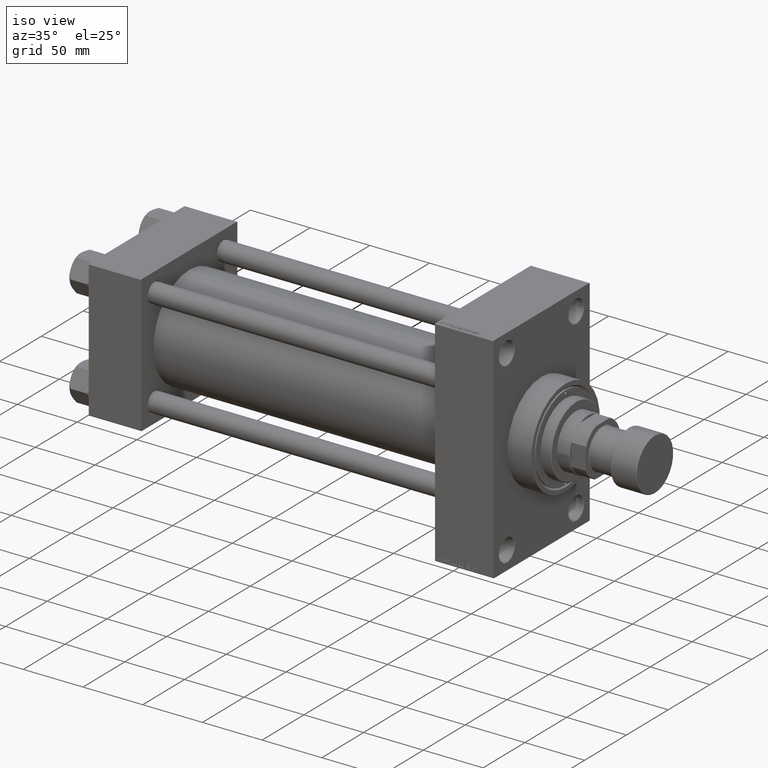
[diagram: clean part render]
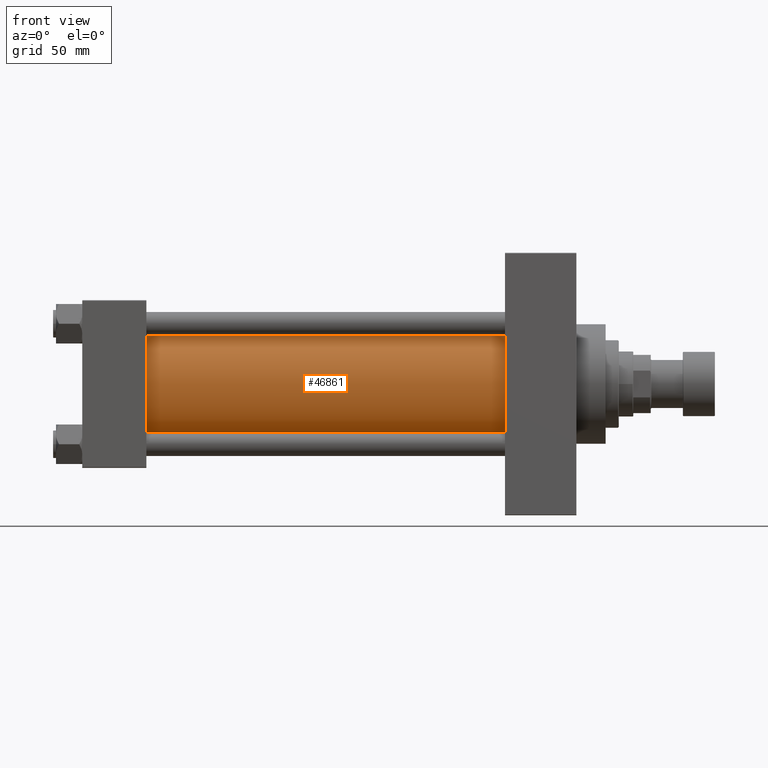
[diagram: tour spotlight — one face highlighted and labeled with its STEP entity id]
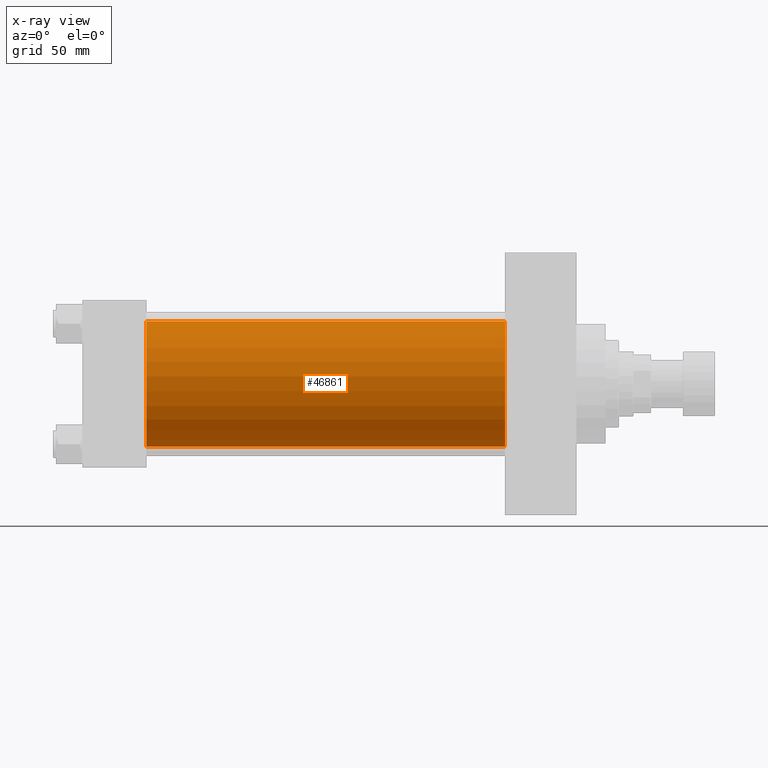
[diagram: x-ray of the same camera — body ghosted, this tour face saturated]
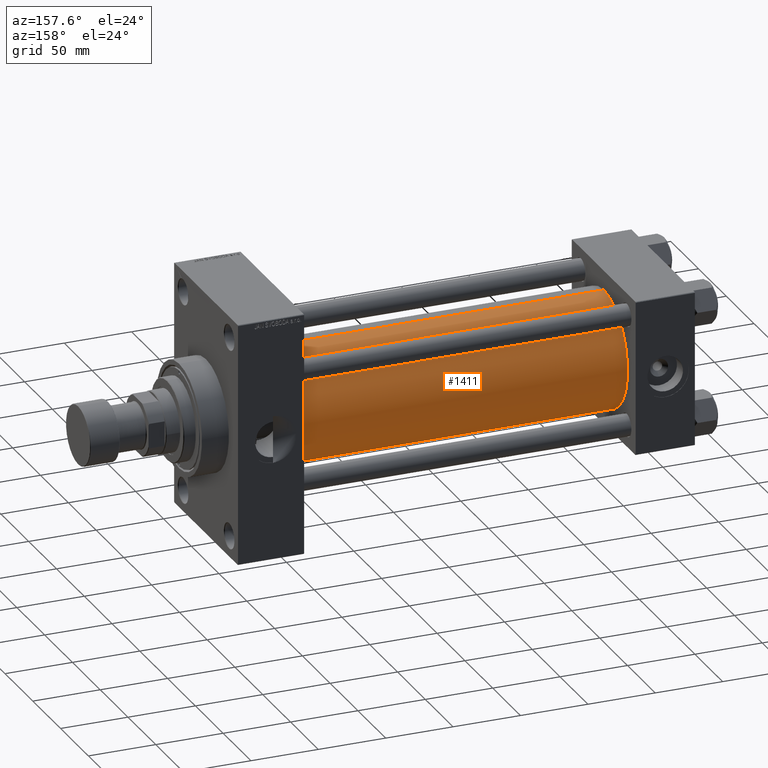
[diagram: tour spotlight — one face highlighted and labeled with its STEP entity id]
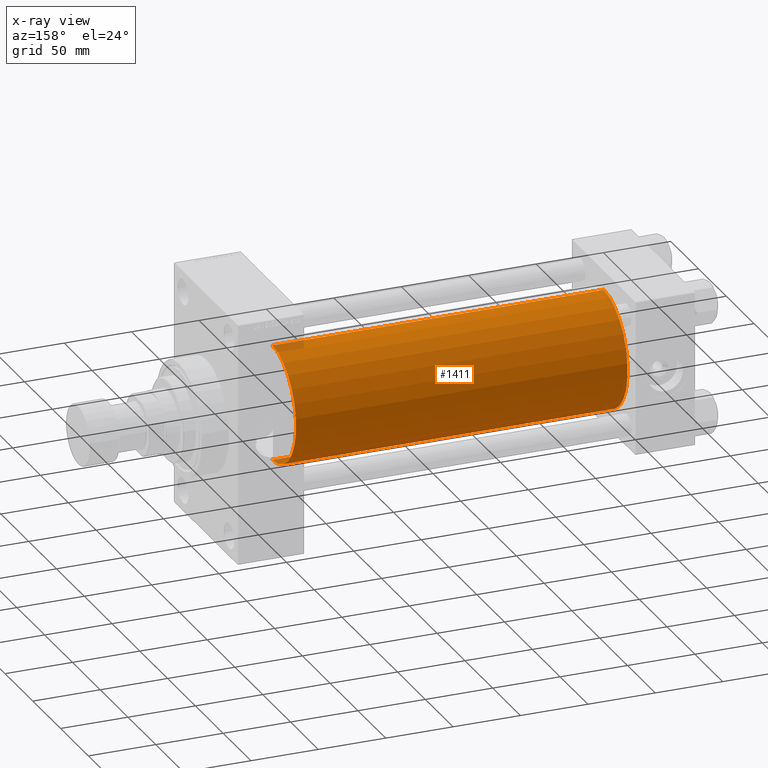
[diagram: x-ray of the same camera — body ghosted, this tour face saturated]
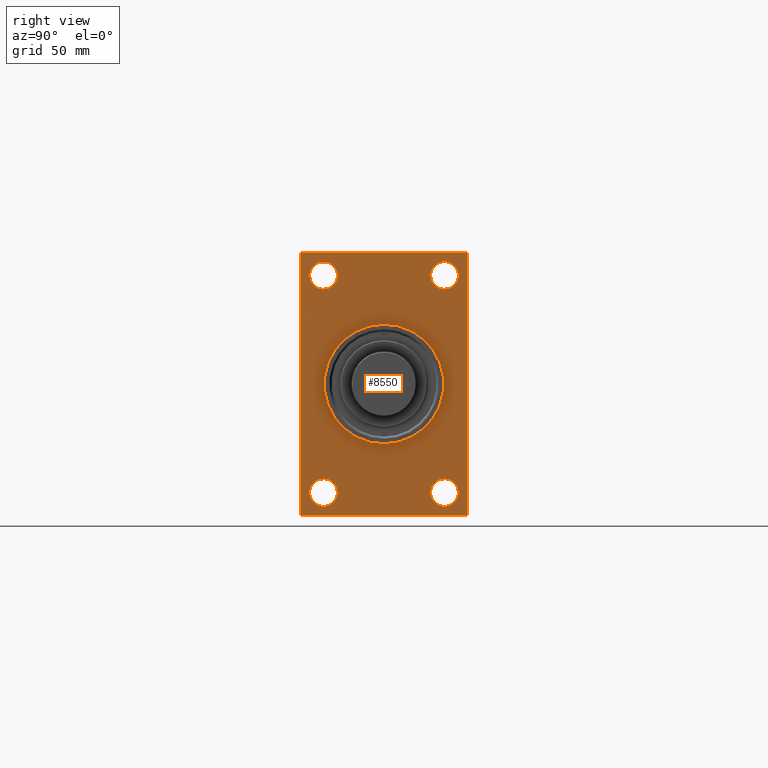
[diagram: tour spotlight — one face highlighted and labeled with its STEP entity id]
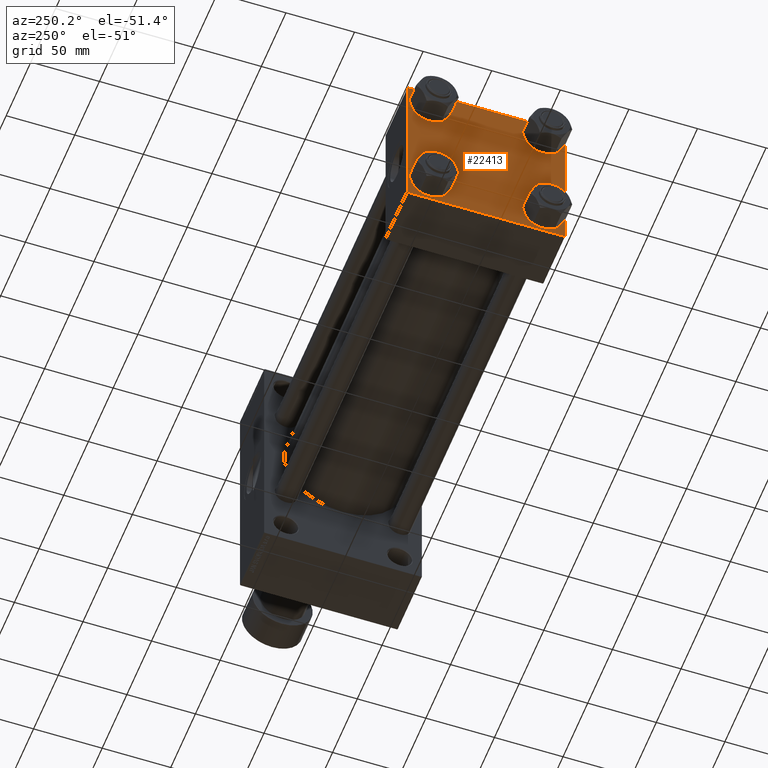
[diagram: tour spotlight — one face highlighted and labeled with its STEP entity id]
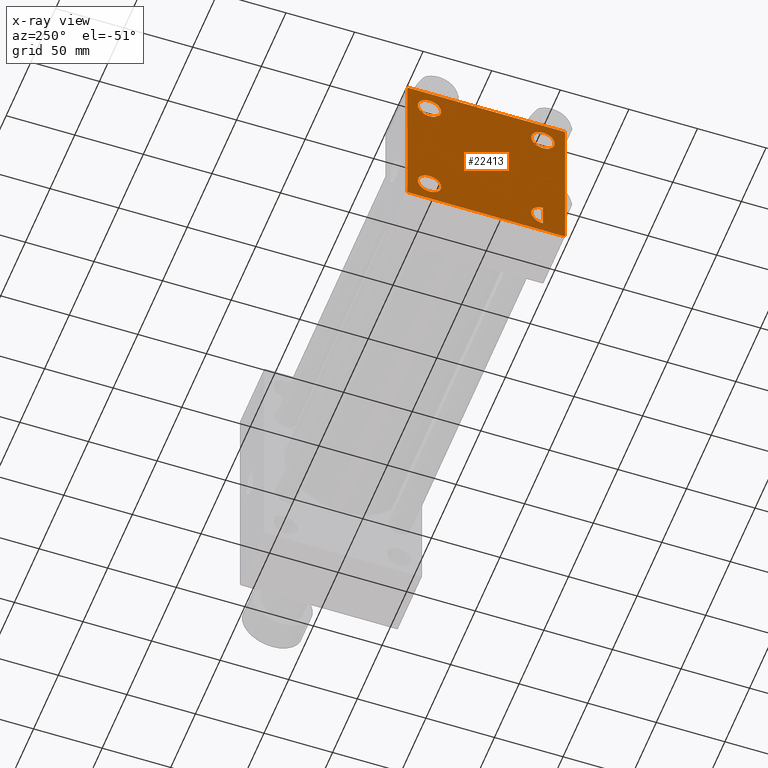
[diagram: x-ray of the same camera — body ghosted, this tour face saturated]
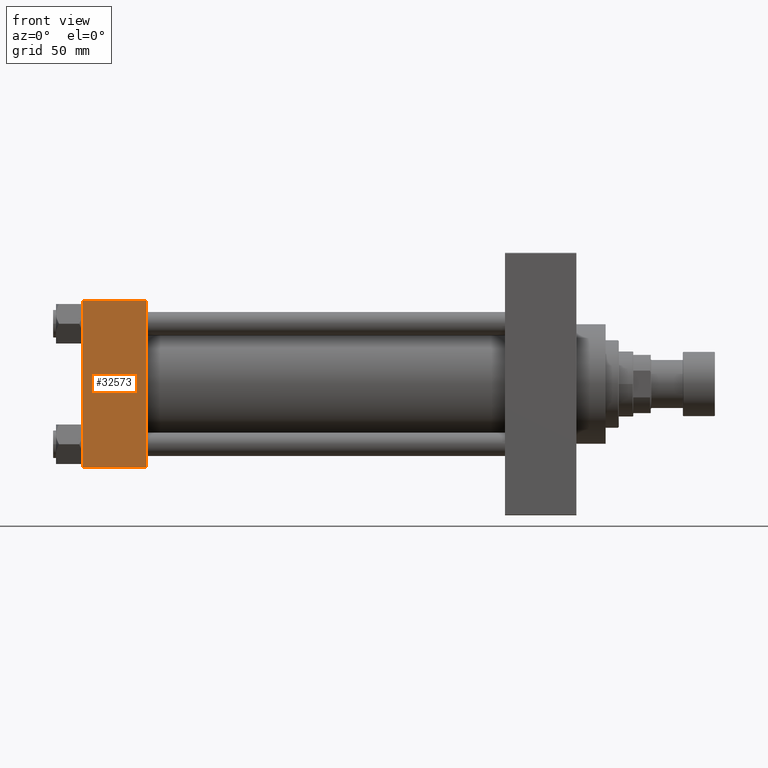
[diagram: tour spotlight — one face highlighted and labeled with its STEP entity id]
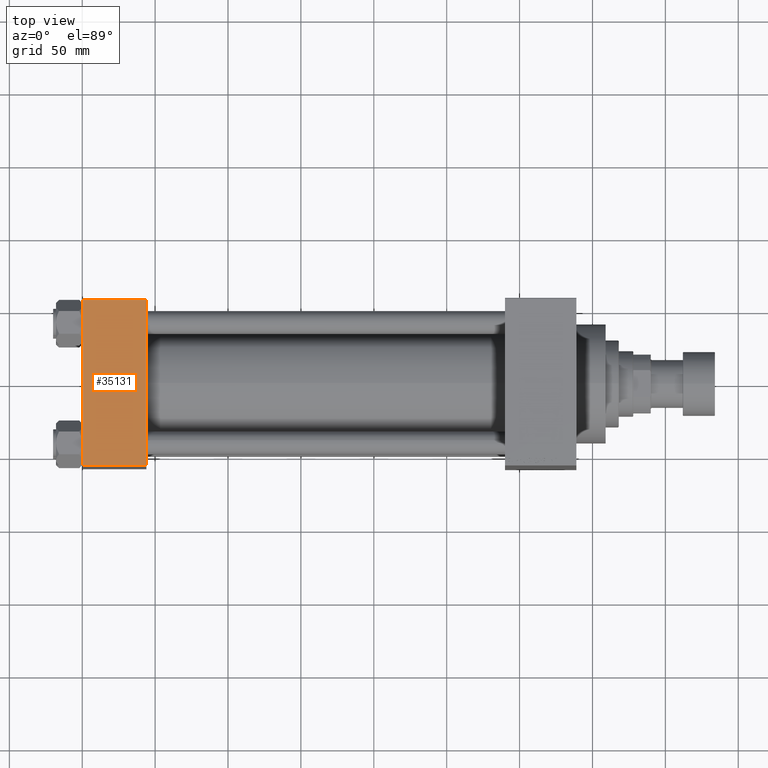
[diagram: tour spotlight — one face highlighted and labeled with its STEP entity id]
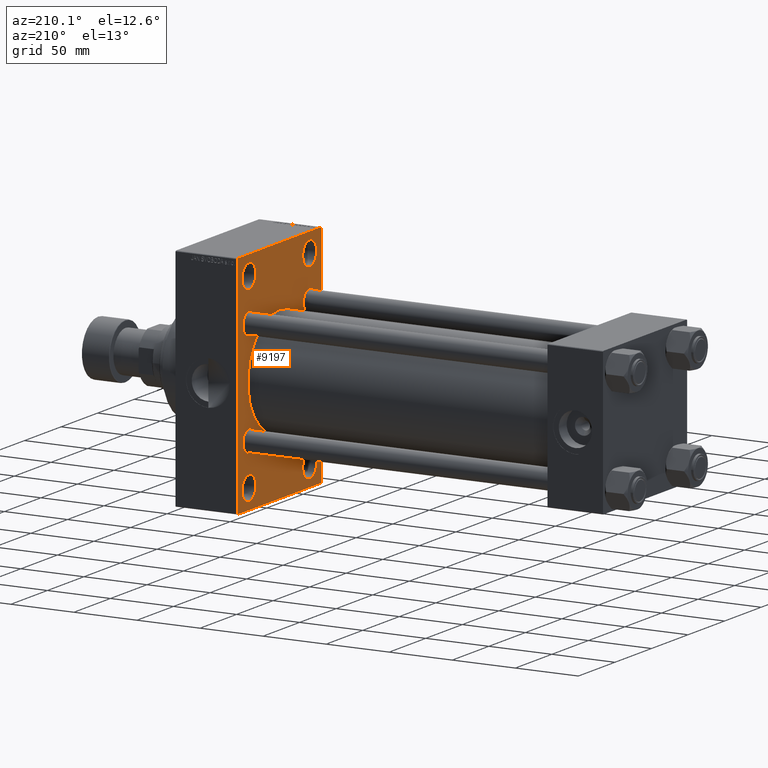
[diagram: tour spotlight — one face highlighted and labeled with its STEP entity id]
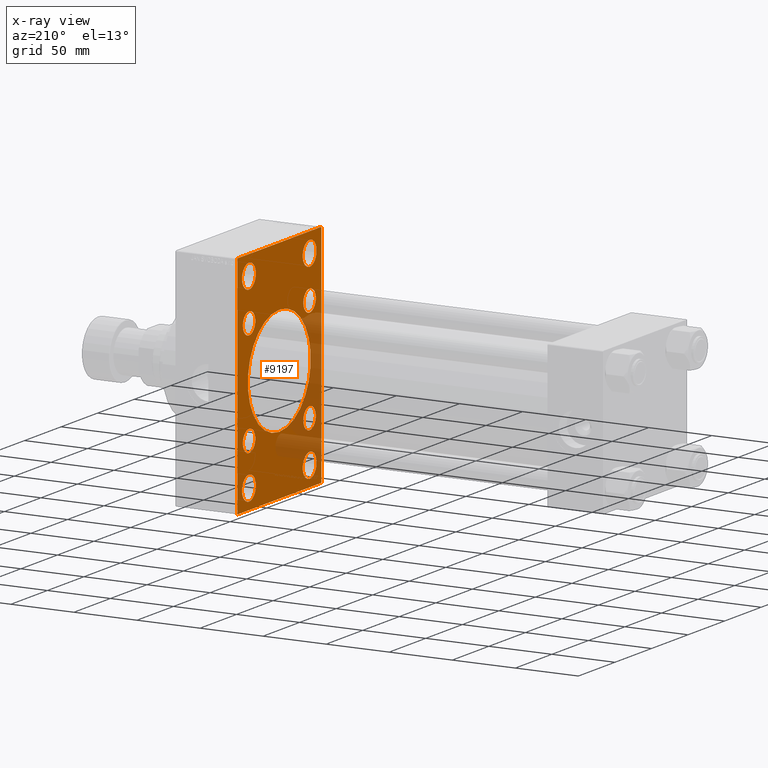
[diagram: x-ray of the same camera — body ghosted, this tour face saturated]
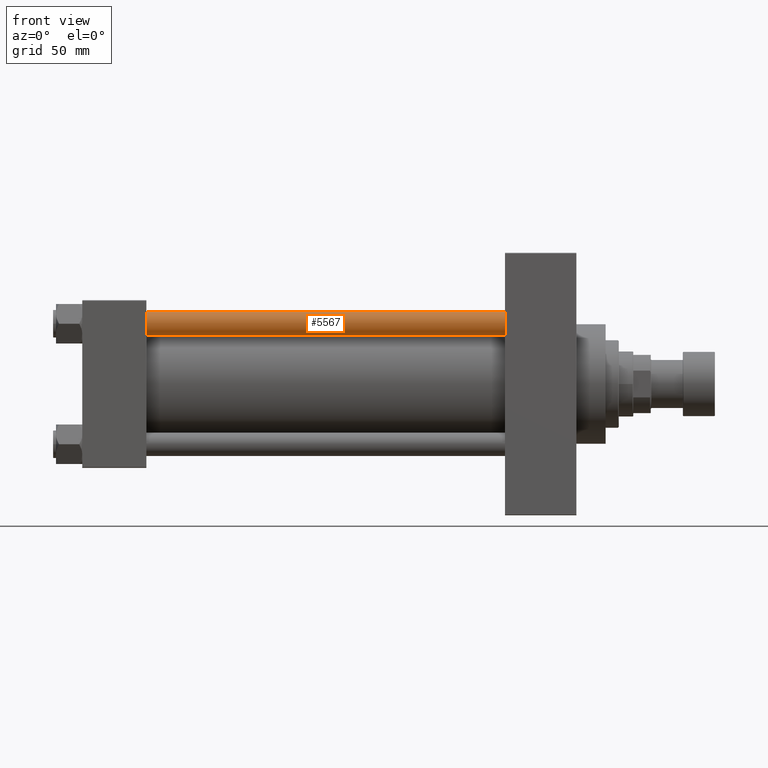
[diagram: tour spotlight — one face highlighted and labeled with its STEP entity id]
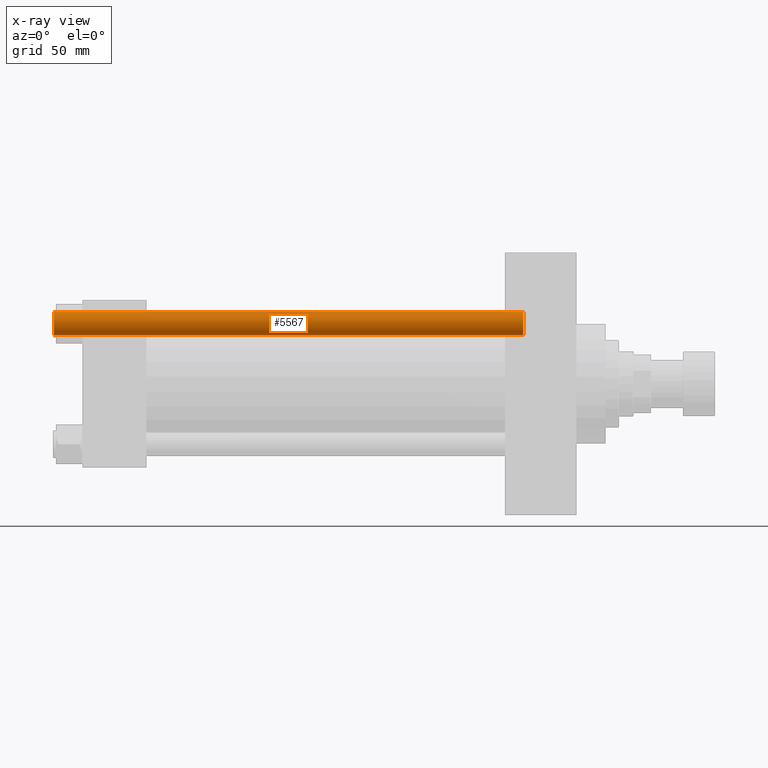
[diagram: x-ray of the same camera — body ghosted, this tour face saturated]
A machine part: a face-by-face anatomy tour. The part has 1173 B-rep faces; the first image is the clean iso view, then the 8 largest visible faces are spotlighted one at a time (largest first), each with its STEP entity span.

Face 1 — front view, entity #46861. An x-ray twin of the same camera follows (body ghosted, this face saturated) — the face is partly hidden behind the body. In plain terms, the highlighted cylindrical surface (partial cylindrical patch) has radius 43 mm, axis along (-1, -0, -0).
Definition (entity closure, byte-faithful):
#1722 = VECTOR ( 'NONE', #23831, 1000.000000000000000 ) ;
#6567 = DIRECTION ( 'NONE',  ( -1.000000000000000000, -0.000000000000000000, -0.000000000000000000 ) ) ;
#12484 = VERTEX_POINT ( 'NONE', #33688 ) ;
#12559 = CARTESIAN_POINT ( 'NONE',  ( 290.0000000000000000, -2.602085213965210642E-15, 0.000000000000000000 ) ) ;
#12573 = DIRECTION ( 'NONE',  ( 0.000000000000000000, 0.000000000000000000, 1.000000000000000000 ) ) ;
#13535 = LINE ( 'NONE', #27726, #1722 ) ;
#13968 = ORIENTED_EDGE ( 'NONE', *, *, #29041, .F. ) ;
#15362 = VERTEX_POINT ( 'NONE', #42796 ) ;
#17645 = EDGE_CURVE ( 'NONE', #22515, #15362, #45304, .T. ) ;
#17926 = VERTEX_POINT ( 'NONE', #41858 ) ;
#18421 = CARTESIAN_POINT ( 'NONE',  ( 290.0000000000000000, -2.602085213965210642E-15, 0.000000000000000000 ) ) ;
#20382 = DIRECTION ( 'NONE',  ( 1.000000000000000000, 0.000000000000000000, 0.000000000000000000 ) ) ;
#21036 = CARTESIAN_POINT ( 'NONE',  ( 43.99999999999998579, -2.602085213965210642E-15, 43.00000000000000000 ) ) ;
#22515 = VERTEX_POINT ( 'NONE', #21036 ) ;
#23831 = DIRECTION ( 'NONE',  ( -1.000000000000000000, -0.000000000000000000, -0.000000000000000000 ) ) ;
#24093 = EDGE_LOOP ( 'NONE', ( #13968, #42311, #31184, #48295 ) ) ;
#27392 = EDGE_CURVE ( 'NONE', #12484, #17926, #27418, .T. ) ;
#27418 = CIRCLE ( 'NONE', #28183, 43.00000000000000000 ) ;
#27726 = CARTESIAN_POINT ( 'NONE',  ( 290.0000000000000000, 2.663896022368408223E-15, -43.00000000000000000 ) ) ;
#28183 = AXIS2_PLACEMENT_3D ( 'NONE', #12559, #20382, #35293 ) ;
#29041 = EDGE_CURVE ( 'NONE', #17926, #15362, #13535, .T. ) ;
#29055 = CARTESIAN_POINT ( 'NONE',  ( 290.0000000000000000, -2.602085213965210642E-15, 43.00000000000000000 ) ) ;
#29675 = AXIS2_PLACEMENT_3D ( 'NONE', #31643, #46559, #12573 ) ;
#31184 = ORIENTED_EDGE ( 'NONE', *, *, #36964, .T. ) ;
#31643 = CARTESIAN_POINT ( 'NONE',  ( 43.99999999999998579, -2.602085213965210642E-15, 0.000000000000000000 ) ) ;
#33341 = DIRECTION ( 'NONE',  ( -1.000000000000000000, -0.000000000000000000, -0.000000000000000000 ) ) ;
#33688 = CARTESIAN_POINT ( 'NONE',  ( 290.0000000000000000, -2.602085213965210642E-15, 43.00000000000000000 ) ) ;
#35293 = DIRECTION ( 'NONE',  ( 0.000000000000000000, 0.000000000000000000, -1.000000000000000000 ) ) ;
#36763 = FACE_OUTER_BOUND ( 'NONE', #24093, .T. ) ;
#36964 = EDGE_CURVE ( 'NONE', #12484, #22515, #40064, .T. ) ;
#40064 = LINE ( 'NONE', #29055, #44029 ) ;
#40332 = AXIS2_PLACEMENT_3D ( 'NONE', #18421, #33341, #48238 ) ;
#40680 = CYLINDRICAL_SURFACE ( 'NONE', #40332, 43.00000000000000000 ) ;
#41858 = CARTESIAN_POINT ( 'NONE',  ( 290.0000000000000000, 2.663896022368408223E-15, -43.00000000000000000 ) ) ;
#42311 = ORIENTED_EDGE ( 'NONE', *, *, #27392, .F. ) ;
#42796 = CARTESIAN_POINT ( 'NONE',  ( 43.99999999999998579, 2.663896022368408223E-15, -43.00000000000000000 ) ) ;
#44029 = VECTOR ( 'NONE', #6567, 1000.000000000000000 ) ;
#45304 = CIRCLE ( 'NONE', #29675, 43.00000000000000000 ) ;
#46559 = DIRECTION ( 'NONE',  ( 1.000000000000000000, -0.000000000000000000, 0.000000000000000000 ) ) ;
#46861 = ADVANCED_FACE ( 'NONE', ( #36763 ), #40680, .T. ) ;
#48238 = DIRECTION ( 'NONE',  ( 0.000000000000000000, 0.000000000000000000, 1.000000000000000000 ) ) ;
#48295 = ORIENTED_EDGE ( 'NONE', *, *, #17645, .T. ) ;

Face 2 — auxiliary view, entity #1411. An x-ray twin of the same camera follows (body ghosted, this face saturated) — the face is partly hidden behind the body. In plain terms, the highlighted cylindrical surface (partial cylindrical patch) has radius 43 mm, axis along (-1, -0, -0).
Definition (entity closure, byte-faithful):
#1411 = ADVANCED_FACE ( 'NONE', ( #38268 ), #45596, .T. ) ;
#1722 = VECTOR ( 'NONE', #23831, 1000.000000000000000 ) ;
#3105 = EDGE_LOOP ( 'NONE', ( #23612, #14830, #22435, #16257 ) ) ;
#4536 = DIRECTION ( 'NONE',  ( 0.000000000000000000, 0.000000000000000000, -1.000000000000000000 ) ) ;
#4763 = DIRECTION ( 'NONE',  ( -1.000000000000000000, -0.000000000000000000, -0.000000000000000000 ) ) ;
#6567 = DIRECTION ( 'NONE',  ( -1.000000000000000000, -0.000000000000000000, -0.000000000000000000 ) ) ;
#8952 = DIRECTION ( 'NONE',  ( 1.000000000000000000, -0.000000000000000000, 0.000000000000000000 ) ) ;
#12091 = CARTESIAN_POINT ( 'NONE',  ( 290.0000000000000000, -2.602085213965210642E-15, 0.000000000000000000 ) ) ;
#12484 = VERTEX_POINT ( 'NONE', #33688 ) ;
#13535 = LINE ( 'NONE', #27726, #1722 ) ;
#14830 = ORIENTED_EDGE ( 'NONE', *, *, #29041, .T. ) ;
#15362 = VERTEX_POINT ( 'NONE', #42796 ) ;
#16257 = ORIENTED_EDGE ( 'NONE', *, *, #36964, .F. ) ;
#17926 = VERTEX_POINT ( 'NONE', #41858 ) ;
#18966 = DIRECTION ( 'NONE',  ( 1.000000000000000000, 0.000000000000000000, 0.000000000000000000 ) ) ;
#19678 = DIRECTION ( 'NONE',  ( 0.000000000000000000, 0.000000000000000000, 1.000000000000000000 ) ) ;
#19724 = DIRECTION ( 'NONE',  ( 0.000000000000000000, 0.000000000000000000, 1.000000000000000000 ) ) ;
#21036 = CARTESIAN_POINT ( 'NONE',  ( 43.99999999999998579, -2.602085213965210642E-15, 43.00000000000000000 ) ) ;
#21844 = EDGE_CURVE ( 'NONE', #15362, #22515, #28016, .T. ) ;
#22435 = ORIENTED_EDGE ( 'NONE', *, *, #21844, .T. ) ;
#22515 = VERTEX_POINT ( 'NONE', #21036 ) ;
#23612 = ORIENTED_EDGE ( 'NONE', *, *, #44164, .F. ) ;
#23831 = DIRECTION ( 'NONE',  ( -1.000000000000000000, -0.000000000000000000, -0.000000000000000000 ) ) ;
#27726 = CARTESIAN_POINT ( 'NONE',  ( 290.0000000000000000, 2.663896022368408223E-15, -43.00000000000000000 ) ) ;
#28016 = CIRCLE ( 'NONE', #30367, 43.00000000000000000 ) ;
#29041 = EDGE_CURVE ( 'NONE', #17926, #15362, #13535, .T. ) ;
#29055 = CARTESIAN_POINT ( 'NONE',  ( 290.0000000000000000, -2.602085213965210642E-15, 43.00000000000000000 ) ) ;
#30367 = AXIS2_PLACEMENT_3D ( 'NONE', #41963, #8952, #19724 ) ;
#32544 = AXIS2_PLACEMENT_3D ( 'NONE', #37545, #18966, #4536 ) ;
#33688 = CARTESIAN_POINT ( 'NONE',  ( 290.0000000000000000, -2.602085213965210642E-15, 43.00000000000000000 ) ) ;
#36964 = EDGE_CURVE ( 'NONE', #12484, #22515, #40064, .T. ) ;
#37226 = CIRCLE ( 'NONE', #32544, 43.00000000000000000 ) ;
#37545 = CARTESIAN_POINT ( 'NONE',  ( 290.0000000000000000, -2.602085213965210642E-15, 0.000000000000000000 ) ) ;
#38268 = FACE_OUTER_BOUND ( 'NONE', #3105, .T. ) ;
#40064 = LINE ( 'NONE', #29055, #44029 ) ;
#41858 = CARTESIAN_POINT ( 'NONE',  ( 290.0000000000000000, 2.663896022368408223E-15, -43.00000000000000000 ) ) ;
#41963 = CARTESIAN_POINT ( 'NONE',  ( 43.99999999999998579, -2.602085213965210642E-15, 0.000000000000000000 ) ) ;
#42796 = CARTESIAN_POINT ( 'NONE',  ( 43.99999999999998579, 2.663896022368408223E-15, -43.00000000000000000 ) ) ;
#44029 = VECTOR ( 'NONE', #6567, 1000.000000000000000 ) ;
#44164 = EDGE_CURVE ( 'NONE', #17926, #12484, #37226, .T. ) ;
#45596 = CYLINDRICAL_SURFACE ( 'NONE', #47984, 43.00000000000000000 ) ;
#47984 = AXIS2_PLACEMENT_3D ( 'NONE', #12091, #4763, #19678 ) ;

Face 3 — right view, entity #8550. In plain terms, the highlighted planar face has unit normal (-1, 0, 0).
Definition (entity closure, byte-faithful):
#170 = DIRECTION ( 'NONE',  ( 0.000000000000000000, 0.000000000000000000, 1.000000000000000000 ) ) ;
#281 = CARTESIAN_POINT ( 'NONE',  ( 338.9999999999999432, -57.00000000000002132, -90.00000000000001421 ) ) ;
#668 = EDGE_CURVE ( 'NONE', #6171, #9775, #11589, .T. ) ;
#992 = VERTEX_POINT ( 'NONE', #1015 ) ;
#1015 = CARTESIAN_POINT ( 'NONE',  ( 338.9999999999999432, 41.50000000000000711, -84.00000000000005684 ) ) ;
#1115 = VECTOR ( 'NONE', #4653, 1000.000000000000114 ) ;
#1191 = CARTESIAN_POINT ( 'NONE',  ( 338.9999999999999432, -57.50000000000002132, -89.50000000000002842 ) ) ;
#1356 = CARTESIAN_POINT ( 'NONE',  ( 338.9999999999999432, 41.50000000000000711, 74.50000000000001421 ) ) ;
#1450 = CARTESIAN_POINT ( 'NONE',  ( 338.9999999999999432, 0.000000000000000000, 0.000000000000000000 ) ) ;
#1723 = DIRECTION ( 'NONE',  ( 0.000000000000000000, -1.000000000000000000, -1.206764157201257045E-16 ) ) ;
#2237 = VERTEX_POINT ( 'NONE', #4508 ) ;
#3090 = CARTESIAN_POINT ( 'NONE',  ( 338.9999999999999432, 41.50000000000000711, 64.99999999999994316 ) ) ;
#3119 = DIRECTION ( 'NONE',  ( 0.000000000000000000, 0.000000000000000000, -1.000000000000000000 ) ) ;
#3203 = AXIS2_PLACEMENT_3D ( 'NONE', #37505, #15007, #4006 ) ;
#3238 = DIRECTION ( 'NONE',  ( 0.000000000000000000, 0.000000000000000000, 1.000000000000000000 ) ) ;
#3279 = CIRCLE ( 'NONE', #30598, 41.00000000000000000 ) ;
#3349 = DIRECTION ( 'NONE',  ( -1.000000000000000000, 0.000000000000000000, -0.000000000000000000 ) ) ;
#3773 = CIRCLE ( 'NONE', #7679, 9.500000000000063949 ) ;
#3835 = DIRECTION ( 'NONE',  ( 0.000000000000000000, 0.000000000000000000, 1.000000000000000000 ) ) ;
#3997 = VERTEX_POINT ( 'NONE', #30998 ) ;
#4006 = DIRECTION ( 'NONE',  ( 0.000000000000000000, 0.000000000000000000, 1.000000000000000000 ) ) ;
#4303 = DIRECTION ( 'NONE',  ( -1.000000000000000000, 0.000000000000000000, -0.000000000000000000 ) ) ;
#4508 = CARTESIAN_POINT ( 'NONE',  ( 338.9999999999999432, 41.50000000000000711, -64.99999999999992895 ) ) ;
#4565 = AXIS2_PLACEMENT_3D ( 'NONE', #44913, #3349, #170 ) ;
#4643 = PLANE ( 'NONE',  #42747 ) ;
#4653 = DIRECTION ( 'NONE',  ( 0.000000000000000000, 0.7071067811865965336, -0.7071067811864985009 ) ) ;
#5062 = CARTESIAN_POINT ( 'NONE',  ( 338.9999999999999432, 57.49999999999997868, -89.50000000000001421 ) ) ;
#5252 = DIRECTION ( 'NONE',  ( 1.000000000000000000, 0.000000000000000000, 0.000000000000000000 ) ) ;
#5494 = CARTESIAN_POINT ( 'NONE',  ( 338.9999999999999432, 0.000000000000000000, 0.000000000000000000 ) ) ;
#5543 = VECTOR ( 'NONE', #1723, 1000.000000000000000 ) ;
#5664 = EDGE_CURVE ( 'NONE', #6923, #17647, #44196, .T. ) ;
#6171 = VERTEX_POINT ( 'NONE', #48098 ) ;
#6647 = VERTEX_POINT ( 'NONE', #20330 ) ;
#6923 = VERTEX_POINT ( 'NONE', #10934 ) ;
#7364 = LINE ( 'NONE', #36953, #15371 ) ;
#7539 = EDGE_LOOP ( 'NONE', ( #19351, #40514 ) ) ;
#7679 = AXIS2_PLACEMENT_3D ( 'NONE', #17128, #25193, #13700 ) ;
#8550 = ADVANCED_FACE ( 'NONE', ( #34222, #15645, #26889, #38382, #41802, #12217 ), #4643, .F. ) ;
#9126 = CIRCLE ( 'NONE', #36448, 9.499999999999896971 ) ;
#9614 = CIRCLE ( 'NONE', #25257, 9.500000000000063949 ) ;
#9775 = VERTEX_POINT ( 'NONE', #1191 ) ;
#9812 = VERTEX_POINT ( 'NONE', #46886 ) ;
#9826 = VECTOR ( 'NONE', #43951, 1000.000000000000000 ) ;
#10604 = ORIENTED_EDGE ( 'NONE', *, *, #32996, .F. ) ;
#10934 = CARTESIAN_POINT ( 'NONE',  ( 338.9999999999999432, -41.49999999999999289, 84.00000000000007105 ) ) ;
#11015 = EDGE_CURVE ( 'NONE', #17647, #6923, #3773, .T. ) ;
#11036 = DIRECTION ( 'NONE',  ( -0.000000000000000000, -0.7071067811865131558, -0.7071067811865818786 ) ) ;
#11225 = LINE ( 'NONE', #18168, #46551 ) ;
#11511 = ORIENTED_EDGE ( 'NONE', *, *, #14575, .T. ) ;
#11589 = LINE ( 'NONE', #17353, #45629 ) ;
#11750 = CARTESIAN_POINT ( 'NONE',  ( 338.9999999999999432, -41.49999999999999289, -74.49999999999998579 ) ) ;
#11754 = EDGE_LOOP ( 'NONE', ( #35982, #39675, #35258, #29387, #41161, #23959, #30818, #35968 ) ) ;
#12016 = LINE ( 'NONE', #26926, #38356 ) ;
#12100 = VERTEX_POINT ( 'NONE', #13228 ) ;
#12217 = FACE_OUTER_BOUND ( 'NONE', #11754, .T. ) ;
#12283 = VERTEX_POINT ( 'NONE', #35657 ) ;
#12894 = CIRCLE ( 'NONE', #16804, 9.500000000000063949 ) ;
#13228 = CARTESIAN_POINT ( 'NONE',  ( 338.9999999999999432, 56.99999999999992184, 89.99999999999998579 ) ) ;
#13443 = DIRECTION ( 'NONE',  ( 0.000000000000000000, 0.000000000000000000, -1.000000000000000000 ) ) ;
#13501 = ORIENTED_EDGE ( 'NONE', *, *, #46764, .F. ) ;
#13700 = DIRECTION ( 'NONE',  ( 0.000000000000000000, 0.000000000000000000, 1.000000000000000000 ) ) ;
#13789 = DIRECTION ( 'NONE',  ( 0.000000000000000000, 0.000000000000000000, -1.000000000000000000 ) ) ;
#14575 = EDGE_CURVE ( 'NONE', #992, #2237, #36604, .T. ) ;
#14848 = CARTESIAN_POINT ( 'NONE',  ( 338.9999999999999432, 0.000000000000000000, 0.000000000000000000 ) ) ;
#15007 = DIRECTION ( 'NONE',  ( -1.000000000000000000, 0.000000000000000000, -0.000000000000000000 ) ) ;
#15371 = VECTOR ( 'NONE', #11036, 1000.000000000000000 ) ;
#15645 = FACE_BOUND ( 'NONE', #18503, .T. ) ;
#15653 = LINE ( 'NONE', #45007, #1115 ) ;
#15733 = CARTESIAN_POINT ( 'NONE',  ( 338.9999999999999432, 57.00000000000003553, -90.00000000000000000 ) ) ;
#16172 = DIRECTION ( 'NONE',  ( 0.000000000000000000, -1.000000000000000000, -1.206764157201257291E-16 ) ) ;
#16370 = DIRECTION ( 'NONE',  ( -0.000000000000000000, 0.000000000000000000, 1.000000000000000000 ) ) ;
#16804 = AXIS2_PLACEMENT_3D ( 'NONE', #1356, #31198, #37793 ) ;
#16854 = EDGE_LOOP ( 'NONE', ( #43399, #31375 ) ) ;
#17128 = CARTESIAN_POINT ( 'NONE',  ( 338.9999999999999432, -41.49999999999999289, 74.50000000000001421 ) ) ;
#17353 = CARTESIAN_POINT ( 'NONE',  ( 338.9999999999999432, -57.50000000000002132, 89.99999999999997158 ) ) ;
#17647 = VERTEX_POINT ( 'NONE', #42882 ) ;
#18049 = CARTESIAN_POINT ( 'NONE',  ( 338.9999999999999432, -57.00000000000007105, 89.99999999999997158 ) ) ;
#18168 = CARTESIAN_POINT ( 'NONE',  ( 338.9999999999999432, 57.49999999999997158, 89.99999999999998579 ) ) ;
#18363 = VERTEX_POINT ( 'NONE', #36389 ) ;
#18503 = EDGE_LOOP ( 'NONE', ( #32671, #36718 ) ) ;
#19351 = ORIENTED_EDGE ( 'NONE', *, *, #11015, .T. ) ;
#19812 = ORIENTED_EDGE ( 'NONE', *, *, #35393, .T. ) ;
#20330 = CARTESIAN_POINT ( 'NONE',  ( 338.9999999999999432, 0.000000000000000000, 41.00000000000000000 ) ) ;
#20760 = AXIS2_PLACEMENT_3D ( 'NONE', #40168, #37222, #3238 ) ;
#21243 = DIRECTION ( 'NONE',  ( -1.000000000000000000, 0.000000000000000000, -0.000000000000000000 ) ) ;
#21446 = LINE ( 'NONE', #40519, #9826 ) ;
#22357 = CIRCLE ( 'NONE', #34852, 41.00000000000000000 ) ;
#22655 = CARTESIAN_POINT ( 'NONE',  ( 338.9999999999999432, 41.50000000000000711, 74.50000000000001421 ) ) ;
#23898 = CIRCLE ( 'NONE', #25469, 9.500000000000063949 ) ;
#23959 = ORIENTED_EDGE ( 'NONE', *, *, #41777, .T. ) ;
#25193 = DIRECTION ( 'NONE',  ( -1.000000000000000000, 0.000000000000000000, -0.000000000000000000 ) ) ;
#25213 = VERTEX_POINT ( 'NONE', #32972 ) ;
#25257 = AXIS2_PLACEMENT_3D ( 'NONE', #32738, #21243, #43737 ) ;
#25469 = AXIS2_PLACEMENT_3D ( 'NONE', #22655, #4303, #3835 ) ;
#26682 = VECTOR ( 'NONE', #33919, 1000.000000000000000 ) ;
#26799 = EDGE_CURVE ( 'NONE', #9812, #41107, #46175, .T. ) ;
#26889 = FACE_BOUND ( 'NONE', #40189, .T. ) ;
#26926 = CARTESIAN_POINT ( 'NONE',  ( 338.9999999999999432, 57.49999999999997158, 89.99999999999998579 ) ) ;
#27169 = LINE ( 'NONE', #27642, #5543 ) ;
#27302 = LINE ( 'NONE', #5062, #26682 ) ;
#27642 = CARTESIAN_POINT ( 'NONE',  ( 338.9999999999999432, 57.49999999999997868, -90.00000000000000000 ) ) ;
#27652 = EDGE_CURVE ( 'NONE', #12100, #40640, #12016, .T. ) ;
#27654 = EDGE_CURVE ( 'NONE', #39486, #40731, #27169, .T. ) ;
#28656 = EDGE_CURVE ( 'NONE', #39486, #3997, #27302, .T. ) ;
#29387 = ORIENTED_EDGE ( 'NONE', *, *, #28656, .T. ) ;
#30598 = AXIS2_PLACEMENT_3D ( 'NONE', #14848, #44691, #3119 ) ;
#30818 = ORIENTED_EDGE ( 'NONE', *, *, #27652, .T. ) ;
#30998 = CARTESIAN_POINT ( 'NONE',  ( 338.9999999999999432, 57.49999999999997868, -89.49999999999995737 ) ) ;
#31198 = DIRECTION ( 'NONE',  ( -1.000000000000000000, 0.000000000000000000, -0.000000000000000000 ) ) ;
#31375 = ORIENTED_EDGE ( 'NONE', *, *, #39198, .T. ) ;
#32389 = CARTESIAN_POINT ( 'NONE',  ( 338.9999999999999432, -41.49999999999999289, -83.99999999999988631 ) ) ;
#32671 = ORIENTED_EDGE ( 'NONE', *, *, #44687, .T. ) ;
#32738 = CARTESIAN_POINT ( 'NONE',  ( 338.9999999999999432, 41.50000000000000711, -74.50000000000000000 ) ) ;
#32972 = CARTESIAN_POINT ( 'NONE',  ( 338.9999999999999432, 57.49999999999997158, 89.49999999999998579 ) ) ;
#32996 = EDGE_CURVE ( 'NONE', #12283, #6647, #3279, .T. ) ;
#33919 = DIRECTION ( 'NONE',  ( -0.000000000000000000, 0.7071067811865181518, 0.7071067811865769936 ) ) ;
#33956 = DIRECTION ( 'NONE',  ( 0.000000000000000000, 3.854941057726238467E-17, -1.000000000000000000 ) ) ;
#34222 = FACE_BOUND ( 'NONE', #7539, .T. ) ;
#34462 = DIRECTION ( 'NONE',  ( -1.000000000000000000, 0.000000000000000000, -0.000000000000000000 ) ) ;
#34852 = AXIS2_PLACEMENT_3D ( 'NONE', #5494, #5252, #13789 ) ;
#35258 = ORIENTED_EDGE ( 'NONE', *, *, #27654, .F. ) ;
#35393 = EDGE_CURVE ( 'NONE', #2237, #992, #9614, .T. ) ;
#35657 = CARTESIAN_POINT ( 'NONE',  ( 338.9999999999999432, 5.021051876504148963E-15, -41.00000000000000000 ) ) ;
#35968 = ORIENTED_EDGE ( 'NONE', *, *, #48037, .T. ) ;
#35982 = ORIENTED_EDGE ( 'NONE', *, *, #668, .T. ) ;
#36389 = CARTESIAN_POINT ( 'NONE',  ( 338.9999999999999432, 41.50000000000000711, 84.00000000000007105 ) ) ;
#36448 = AXIS2_PLACEMENT_3D ( 'NONE', #11750, #44293, #47942 ) ;
#36604 = CIRCLE ( 'NONE', #4565, 9.500000000000063949 ) ;
#36718 = ORIENTED_EDGE ( 'NONE', *, *, #26799, .T. ) ;
#36953 = CARTESIAN_POINT ( 'NONE',  ( 338.9999999999999432, -57.50000000000002132, 89.49999999999997158 ) ) ;
#37222 = DIRECTION ( 'NONE',  ( -1.000000000000000000, 0.000000000000000000, -0.000000000000000000 ) ) ;
#37505 = CARTESIAN_POINT ( 'NONE',  ( 338.9999999999999432, -41.49999999999999289, -74.49999999999998579 ) ) ;
#37793 = DIRECTION ( 'NONE',  ( 0.000000000000000000, 0.000000000000000000, 1.000000000000000000 ) ) ;
#37991 = EDGE_CURVE ( 'NONE', #9775, #40731, #15653, .T. ) ;
#38108 = VERTEX_POINT ( 'NONE', #3090 ) ;
#38356 = VECTOR ( 'NONE', #16172, 1000.000000000000000 ) ;
#38382 = FACE_BOUND ( 'NONE', #16854, .T. ) ;
#39198 = EDGE_CURVE ( 'NONE', #18363, #38108, #12894, .T. ) ;
#39486 = VERTEX_POINT ( 'NONE', #15733 ) ;
#39675 = ORIENTED_EDGE ( 'NONE', *, *, #37991, .T. ) ;
#40168 = CARTESIAN_POINT ( 'NONE',  ( 338.9999999999999432, -41.49999999999999289, 74.50000000000001421 ) ) ;
#40189 = EDGE_LOOP ( 'NONE', ( #11511, #19812 ) ) ;
#40514 = ORIENTED_EDGE ( 'NONE', *, *, #5664, .T. ) ;
#40519 = CARTESIAN_POINT ( 'NONE',  ( 338.9999999999999432, 56.99999999999992184, 89.99999999999998579 ) ) ;
#40640 = VERTEX_POINT ( 'NONE', #18049 ) ;
#40731 = VERTEX_POINT ( 'NONE', #281 ) ;
#41107 = VERTEX_POINT ( 'NONE', #32389 ) ;
#41161 = ORIENTED_EDGE ( 'NONE', *, *, #41639, .F. ) ;
#41639 = EDGE_CURVE ( 'NONE', #25213, #3997, #11225, .T. ) ;
#41777 = EDGE_CURVE ( 'NONE', #25213, #12100, #21446, .T. ) ;
#41802 = FACE_BOUND ( 'NONE', #46623, .T. ) ;
#42030 = EDGE_CURVE ( 'NONE', #38108, #18363, #23898, .T. ) ;
#42747 = AXIS2_PLACEMENT_3D ( 'NONE', #1450, #34462, #16370 ) ;
#42882 = CARTESIAN_POINT ( 'NONE',  ( 338.9999999999999432, -41.49999999999999289, 64.99999999999994316 ) ) ;
#43399 = ORIENTED_EDGE ( 'NONE', *, *, #42030, .T. ) ;
#43737 = DIRECTION ( 'NONE',  ( 0.000000000000000000, 0.000000000000000000, 1.000000000000000000 ) ) ;
#43951 = DIRECTION ( 'NONE',  ( 0.000000000000000000, -0.7071067811865867636, 0.7071067811865081598 ) ) ;
#44196 = CIRCLE ( 'NONE', #20760, 9.500000000000063949 ) ;
#44293 = DIRECTION ( 'NONE',  ( -1.000000000000000000, 0.000000000000000000, -0.000000000000000000 ) ) ;
#44687 = EDGE_CURVE ( 'NONE', #41107, #9812, #9126, .T. ) ;
#44691 = DIRECTION ( 'NONE',  ( 1.000000000000000000, 0.000000000000000000, 0.000000000000000000 ) ) ;
#44913 = CARTESIAN_POINT ( 'NONE',  ( 338.9999999999999432, 41.50000000000000711, -74.50000000000000000 ) ) ;
#45007 = CARTESIAN_POINT ( 'NONE',  ( 338.9999999999999432, -57.00000000000002132, -90.00000000000001421 ) ) ;
#45629 = VECTOR ( 'NONE', #13443, 1000.000000000000000 ) ;
#46175 = CIRCLE ( 'NONE', #3203, 9.499999999999896971 ) ;
#46551 = VECTOR ( 'NONE', #33956, 1000.000000000000000 ) ;
#46623 = EDGE_LOOP ( 'NONE', ( #13501, #10604 ) ) ;
#46764 = EDGE_CURVE ( 'NONE', #6647, #12283, #22357, .T. ) ;
#46886 = CARTESIAN_POINT ( 'NONE',  ( 338.9999999999999432, -41.49999999999999289, -65.00000000000008527 ) ) ;
#47942 = DIRECTION ( 'NONE',  ( 0.000000000000000000, 0.000000000000000000, 1.000000000000000000 ) ) ;
#48037 = EDGE_CURVE ( 'NONE', #40640, #6171, #7364, .T. ) ;
#48098 = CARTESIAN_POINT ( 'NONE',  ( 338.9999999999999432, -57.50000000000002132, 89.49999999999997158 ) ) ;

Face 4 — auxiliary view, entity #22413. An x-ray twin of the same camera follows (body ghosted, this face saturated) — the face is partly hidden behind the body. In plain terms, the highlighted planar face has unit normal (-1, 0, 0).
Definition (entity closure, byte-faithful):
#227 = EDGE_CURVE ( 'NONE', #24183, #15125, #9293, .T. ) ;
#543 = DIRECTION ( 'NONE',  ( -1.000000000000000000, 0.000000000000000000, -0.000000000000000000 ) ) ;
#583 = EDGE_CURVE ( 'NONE', #47152, #34702, #3398, .T. ) ;
#753 = VERTEX_POINT ( 'NONE', #26143 ) ;
#1254 = FACE_BOUND ( 'NONE', #36342, .T. ) ;
#1346 = DIRECTION ( 'NONE',  ( 0.000000000000000000, 0.000000000000000000, 1.000000000000000000 ) ) ;
#1473 = VERTEX_POINT ( 'NONE', #34902 ) ;
#1548 = CARTESIAN_POINT ( 'NONE',  ( 0.000000000000000000, -57.50000000000000711, -57.00000000000000711 ) ) ;
#1805 = CARTESIAN_POINT ( 'NONE',  ( 290.0000000000000000, 0.000000000000000000, 0.000000000000000000 ) ) ;
#1958 = EDGE_CURVE ( 'NONE', #37180, #1473, #32396, .T. ) ;
#2182 = CARTESIAN_POINT ( 'NONE',  ( 0.000000000000000000, -57.50000000000000711, 57.49999999999999289 ) ) ;
#2461 = LINE ( 'NONE', #47202, #18979 ) ;
#3195 = DIRECTION ( 'NONE',  ( 0.000000000000000000, 0.000000000000000000, 1.000000000000000000 ) ) ;
#3309 = EDGE_LOOP ( 'NONE', ( #11523, #39659 ) ) ;
#3398 = LINE ( 'NONE', #44486, #39370 ) ;
#4056 = VERTEX_POINT ( 'NONE', #16548 ) ;
#4387 = DIRECTION ( 'NONE',  ( 0.000000000000000000, 0.7071067811865573427, -0.7071067811865376918 ) ) ;
#4402 = EDGE_CURVE ( 'NONE', #31143, #11641, #22301, .T. ) ;
#5219 = VECTOR ( 'NONE', #22566, 1000.000000000000114 ) ;
#5566 = ORIENTED_EDGE ( 'NONE', *, *, #4402, .T. ) ;
#5627 = DIRECTION ( 'NONE',  ( 0.000000000000000000, 0.000000000000000000, -1.000000000000000000 ) ) ;
#5645 = CIRCLE ( 'NONE', #17333, 30.50000000000000000 ) ;
#5881 = LINE ( 'NONE', #24699, #32672 ) ;
#6807 = EDGE_CURVE ( 'NONE', #16389, #28404, #11485, .T. ) ;
#7592 = CARTESIAN_POINT ( 'NONE',  ( 0.000000000000000000, -57.00000000000003553, 57.49999999999999289 ) ) ;
#7650 = LINE ( 'NONE', #19866, #5219 ) ;
#7841 = VERTEX_POINT ( 'NONE', #26291 ) ;
#7882 = DIRECTION ( 'NONE',  ( 1.000000000000000000, -0.000000000000000000, 0.000000000000000000 ) ) ;
#7967 = DIRECTION ( 'NONE',  ( 0.000000000000000000, -1.000000000000000000, -1.206764157201257045E-16 ) ) ;
#8594 = FACE_BOUND ( 'NONE', #42252, .T. ) ;
#8853 = ORIENTED_EDGE ( 'NONE', *, *, #227, .F. ) ;
#9293 = LINE ( 'NONE', #2182, #46367 ) ;
#10257 = DIRECTION ( 'NONE',  ( 1.000000000000000000, -0.000000000000000000, 0.000000000000000000 ) ) ;
#10749 = DIRECTION ( 'NONE',  ( 0.000000000000000000, 0.000000000000000000, 1.000000000000000000 ) ) ;
#11043 = EDGE_CURVE ( 'NONE', #39964, #24033, #27992, .T. ) ;
#11148 = LINE ( 'NONE', #34117, #35678 ) ;
#11384 = ORIENTED_EDGE ( 'NONE', *, *, #39934, .T. ) ;
#11485 = LINE ( 'NONE', #30555, #30202 ) ;
#11523 = ORIENTED_EDGE ( 'NONE', *, *, #28969, .F. ) ;
#11641 = VERTEX_POINT ( 'NONE', #24066 ) ;
#11861 = CIRCLE ( 'NONE', #36080, 8.499999999999992895 ) ;
#12107 = DIRECTION ( 'NONE',  ( 1.000000000000000000, -0.000000000000000000, 0.000000000000000000 ) ) ;
#12496 = FACE_BOUND ( 'NONE', #19497, .T. ) ;
#12637 = CARTESIAN_POINT ( 'NONE',  ( 0.000000000000000000, 41.34999999999999432, -49.85000000000000142 ) ) ;
#12797 = EDGE_CURVE ( 'NONE', #34702, #753, #5881, .T. ) ;
#13460 = DIRECTION ( 'NONE',  ( 1.000000000000000000, -0.000000000000000000, 0.000000000000000000 ) ) ;
#13923 = DIRECTION ( 'NONE',  ( 0.000000000000000000, 0.000000000000000000, 1.000000000000000000 ) ) ;
#14047 = ORIENTED_EDGE ( 'NONE', *, *, #11043, .T. ) ;
#14648 = CARTESIAN_POINT ( 'NONE',  ( 0.000000000000000000, 41.34999999999999432, -41.35000000000000142 ) ) ;
#14935 = VERTEX_POINT ( 'NONE', #18929 ) ;
#15015 = CARTESIAN_POINT ( 'NONE',  ( 0.000000000000000000, -41.34999999999998721, 41.35000000000000853 ) ) ;
#15125 = VERTEX_POINT ( 'NONE', #1548 ) ;
#15267 = DIRECTION ( 'NONE',  ( 0.000000000000000000, 0.000000000000000000, 1.000000000000000000 ) ) ;
#15407 = EDGE_CURVE ( 'NONE', #35134, #14935, #32735, .T. ) ;
#15445 = DIRECTION ( 'NONE',  ( -0.000000000000000000, 0.000000000000000000, 1.000000000000000000 ) ) ;
#15459 = ORIENTED_EDGE ( 'NONE', *, *, #3309, .T. ) ;
#15937 = CIRCLE ( 'NONE', #44068, 8.499999999999992895 ) ;
#16389 = VERTEX_POINT ( 'NONE', #21402 ) ;
#16548 = CARTESIAN_POINT ( 'NONE',  ( 0.000000000000000000, -41.34999999999998721, -49.85000000000000853 ) ) ;
#17333 = AXIS2_PLACEMENT_3D ( 'NONE', #1805, #31878, #43365 ) ;
#17844 = DIRECTION ( 'NONE',  ( -1.000000000000000000, 0.000000000000000000, -0.000000000000000000 ) ) ;
#18929 = CARTESIAN_POINT ( 'NONE',  ( 290.0000000000000000, 0.000000000000000000, -30.50000000000000000 ) ) ;
#18979 = VECTOR ( 'NONE', #44276, 1000.000000000000000 ) ;
#19497 = EDGE_LOOP ( 'NONE', ( #15459, #43210 ) ) ;
#19866 = CARTESIAN_POINT ( 'NONE',  ( 0.000000000000000000, -57.25000000000000711, -57.25000000000000711 ) ) ;
#19943 = LINE ( 'NONE', #27513, #30886 ) ;
#20787 = DIRECTION ( 'NONE',  ( 0.000000000000000000, -1.000000000000000000, -1.206764157201257045E-16 ) ) ;
#20984 = ORIENTED_EDGE ( 'NONE', *, *, #37436, .T. ) ;
#21402 = CARTESIAN_POINT ( 'NONE',  ( 0.000000000000000000, 57.00000000000000711, 57.50000000000000711 ) ) ;
#22301 = CIRCLE ( 'NONE', #46494, 8.499999999999992895 ) ;
#22413 = ADVANCED_FACE ( 'NONE', ( #8594, #12496, #1254, #45518, #38187 ), #41844, .T. ) ;
#22459 = ORIENTED_EDGE ( 'NONE', *, *, #44131, .T. ) ;
#22566 = DIRECTION ( 'NONE',  ( 0.000000000000000000, -0.7071067811865474617, 0.7071067811865474617 ) ) ;
#24033 = VERTEX_POINT ( 'NONE', #47572 ) ;
#24066 = CARTESIAN_POINT ( 'NONE',  ( 0.000000000000000000, -41.34999999999998721, 32.85000000000001563 ) ) ;
#24168 = EDGE_CURVE ( 'NONE', #24033, #39964, #46833, .T. ) ;
#24183 = VERTEX_POINT ( 'NONE', #36692 ) ;
#24696 = CARTESIAN_POINT ( 'NONE',  ( 290.0000000000000000, 0.000000000000000000, 0.000000000000000000 ) ) ;
#24699 = CARTESIAN_POINT ( 'NONE',  ( 0.000000000000000000, 57.49999999999999289, -57.49999999999999289 ) ) ;
#24887 = DIRECTION ( 'NONE',  ( 1.000000000000000000, -0.000000000000000000, 0.000000000000000000 ) ) ;
#24923 = ORIENTED_EDGE ( 'NONE', *, *, #6807, .T. ) ;
#25042 = CARTESIAN_POINT ( 'NONE',  ( 0.000000000000000000, 57.00000000000002132, -57.49999999999999289 ) ) ;
#25422 = EDGE_LOOP ( 'NONE', ( #25776, #30033, #28778, #45319, #8853, #22459, #38527, #24923 ) ) ;
#25521 = ORIENTED_EDGE ( 'NONE', *, *, #24168, .T. ) ;
#25776 = ORIENTED_EDGE ( 'NONE', *, *, #34034, .T. ) ;
#26143 = CARTESIAN_POINT ( 'NONE',  ( 0.000000000000000000, -57.00000000000000711, -57.50000000000000711 ) ) ;
#26291 = CARTESIAN_POINT ( 'NONE',  ( 0.000000000000000000, -41.34999999999998721, -32.85000000000001563 ) ) ;
#26300 = CARTESIAN_POINT ( 'NONE',  ( 0.000000000000000000, -41.34999999999998721, 41.35000000000000853 ) ) ;
#26686 = CARTESIAN_POINT ( 'NONE',  ( 0.000000000000000000, 0.000000000000000000, 0.000000000000000000 ) ) ;
#27513 = CARTESIAN_POINT ( 'NONE',  ( 0.000000000000000000, 57.49999999999999289, 57.50000000000000711 ) ) ;
#27992 = CIRCLE ( 'NONE', #32710, 8.499999999999992895 ) ;
#28288 = ORIENTED_EDGE ( 'NONE', *, *, #1958, .T. ) ;
#28375 = DIRECTION ( 'NONE',  ( 0.000000000000000000, 0.000000000000000000, 1.000000000000000000 ) ) ;
#28404 = VERTEX_POINT ( 'NONE', #47437 ) ;
#28778 = ORIENTED_EDGE ( 'NONE', *, *, #12797, .T. ) ;
#28793 = AXIS2_PLACEMENT_3D ( 'NONE', #26686, #543, #15445 ) ;
#28969 = EDGE_CURVE ( 'NONE', #14935, #35134, #5645, .T. ) ;
#29082 = CARTESIAN_POINT ( 'NONE',  ( 0.000000000000000000, 41.34999999999999432, 49.85000000000000142 ) ) ;
#29126 = CARTESIAN_POINT ( 'NONE',  ( 290.0000000000000000, 3.735172737399427541E-15, 30.50000000000000000 ) ) ;
#29268 = EDGE_CURVE ( 'NONE', #4056, #7841, #11861, .T. ) ;
#29705 = DIRECTION ( 'NONE',  ( 1.000000000000000000, -0.000000000000000000, 0.000000000000000000 ) ) ;
#30033 = ORIENTED_EDGE ( 'NONE', *, *, #583, .T. ) ;
#30071 = AXIS2_PLACEMENT_3D ( 'NONE', #14648, #10257, #13923 ) ;
#30202 = VECTOR ( 'NONE', #4387, 1000.000000000000114 ) ;
#30555 = CARTESIAN_POINT ( 'NONE',  ( 0.000000000000000000, 57.24999999999922551, 57.25000000000081712 ) ) ;
#30886 = VECTOR ( 'NONE', #7967, 1000.000000000000000 ) ;
#31143 = VERTEX_POINT ( 'NONE', #47044 ) ;
#31878 = DIRECTION ( 'NONE',  ( -1.000000000000000000, 0.000000000000000000, -0.000000000000000000 ) ) ;
#32396 = CIRCLE ( 'NONE', #37838, 8.499999999999992895 ) ;
#32672 = VECTOR ( 'NONE', #20787, 1000.000000000000000 ) ;
#32710 = AXIS2_PLACEMENT_3D ( 'NONE', #46953, #13460, #28375 ) ;
#32735 = CIRCLE ( 'NONE', #33505, 30.50000000000000000 ) ;
#33505 = AXIS2_PLACEMENT_3D ( 'NONE', #24696, #17844, #10749 ) ;
#33572 = CARTESIAN_POINT ( 'NONE',  ( 0.000000000000000000, -41.34999999999998721, -41.35000000000000853 ) ) ;
#34034 = EDGE_CURVE ( 'NONE', #28404, #47152, #2461, .T. ) ;
#34117 = CARTESIAN_POINT ( 'NONE',  ( -0.000000000000000000, -57.25000000000081712, 57.24999999999922551 ) ) ;
#34702 = VERTEX_POINT ( 'NONE', #25042 ) ;
#34902 = CARTESIAN_POINT ( 'NONE',  ( 0.000000000000000000, 41.34999999999999432, -32.85000000000000853 ) ) ;
#34953 = DIRECTION ( 'NONE',  ( 0.000000000000000000, 0.000000000000000000, 1.000000000000000000 ) ) ;
#35134 = VERTEX_POINT ( 'NONE', #29126 ) ;
#35678 = VECTOR ( 'NONE', #40977, 1000.000000000000114 ) ;
#36080 = AXIS2_PLACEMENT_3D ( 'NONE', #33572, #7882, #34953 ) ;
#36307 = DIRECTION ( 'NONE',  ( 0.000000000000000000, 0.000000000000000000, 1.000000000000000000 ) ) ;
#36342 = EDGE_LOOP ( 'NONE', ( #11384, #28288 ) ) ;
#36371 = CARTESIAN_POINT ( 'NONE',  ( 0.000000000000000000, 41.34999999999999432, -41.35000000000000142 ) ) ;
#36692 = CARTESIAN_POINT ( 'NONE',  ( 0.000000000000000000, -57.50000000000000711, 57.00000000000000711 ) ) ;
#37006 = EDGE_LOOP ( 'NONE', ( #14047, #25521 ) ) ;
#37180 = VERTEX_POINT ( 'NONE', #12637 ) ;
#37436 = EDGE_CURVE ( 'NONE', #11641, #31143, #15937, .T. ) ;
#37838 = AXIS2_PLACEMENT_3D ( 'NONE', #36371, #24887, #15267 ) ;
#38187 = FACE_OUTER_BOUND ( 'NONE', #25422, .T. ) ;
#38527 = ORIENTED_EDGE ( 'NONE', *, *, #41069, .F. ) ;
#39370 = VECTOR ( 'NONE', #39602, 1000.000000000000114 ) ;
#39602 = DIRECTION ( 'NONE',  ( -0.000000000000000000, -0.7071067811865376918, -0.7071067811865573427 ) ) ;
#39659 = ORIENTED_EDGE ( 'NONE', *, *, #15407, .F. ) ;
#39934 = EDGE_CURVE ( 'NONE', #1473, #37180, #43340, .T. ) ;
#39964 = VERTEX_POINT ( 'NONE', #29082 ) ;
#40977 = DIRECTION ( 'NONE',  ( -0.000000000000000000, 0.7071067811865376918, 0.7071067811865573427 ) ) ;
#41069 = EDGE_CURVE ( 'NONE', #16389, #44648, #19943, .T. ) ;
#41844 = PLANE ( 'NONE',  #28793 ) ;
#42252 = EDGE_LOOP ( 'NONE', ( #5566, #20984 ) ) ;
#43210 = ORIENTED_EDGE ( 'NONE', *, *, #29268, .T. ) ;
#43340 = CIRCLE ( 'NONE', #30071, 8.499999999999992895 ) ;
#43365 = DIRECTION ( 'NONE',  ( 0.000000000000000000, 0.000000000000000000, 1.000000000000000000 ) ) ;
#43552 = CARTESIAN_POINT ( 'NONE',  ( 0.000000000000000000, 57.49999999999999289, -57.00000000000000711 ) ) ;
#43721 = AXIS2_PLACEMENT_3D ( 'NONE', #44281, #44032, #3195 ) ;
#44032 = DIRECTION ( 'NONE',  ( 1.000000000000000000, -0.000000000000000000, 0.000000000000000000 ) ) ;
#44068 = AXIS2_PLACEMENT_3D ( 'NONE', #26300, #12107, #1346 ) ;
#44131 = EDGE_CURVE ( 'NONE', #24183, #44648, #11148, .T. ) ;
#44276 = DIRECTION ( 'NONE',  ( 0.000000000000000000, 0.000000000000000000, -1.000000000000000000 ) ) ;
#44281 = CARTESIAN_POINT ( 'NONE',  ( 0.000000000000000000, 41.34999999999999432, 41.35000000000000142 ) ) ;
#44486 = CARTESIAN_POINT ( 'NONE',  ( 0.000000000000000000, 57.25000000000081712, -57.24999999999922551 ) ) ;
#44648 = VERTEX_POINT ( 'NONE', #7592 ) ;
#45319 = ORIENTED_EDGE ( 'NONE', *, *, #47035, .T. ) ;
#45518 = FACE_BOUND ( 'NONE', #37006, .T. ) ;
#46367 = VECTOR ( 'NONE', #5627, 1000.000000000000000 ) ;
#46494 = AXIS2_PLACEMENT_3D ( 'NONE', #15015, #29705, #36307 ) ;
#46833 = CIRCLE ( 'NONE', #43721, 8.499999999999992895 ) ;
#46953 = CARTESIAN_POINT ( 'NONE',  ( 0.000000000000000000, 41.34999999999999432, 41.35000000000000142 ) ) ;
#47035 = EDGE_CURVE ( 'NONE', #753, #15125, #7650, .T. ) ;
#47044 = CARTESIAN_POINT ( 'NONE',  ( 0.000000000000000000, -41.34999999999998721, 49.85000000000000853 ) ) ;
#47152 = VERTEX_POINT ( 'NONE', #43552 ) ;
#47202 = CARTESIAN_POINT ( 'NONE',  ( 0.000000000000000000, 57.49999999999999289, 57.50000000000000711 ) ) ;
#47437 = CARTESIAN_POINT ( 'NONE',  ( 0.000000000000000000, 57.49999999999999289, 57.00000000000003553 ) ) ;
#47572 = CARTESIAN_POINT ( 'NONE',  ( 0.000000000000000000, 41.34999999999999432, 32.85000000000000853 ) ) ;

Face 5 — front view, entity #32573. In plain terms, the highlighted planar face has unit normal (0, 1, 0).
Definition (entity closure, byte-faithful):
#227 = EDGE_CURVE ( 'NONE', #24183, #15125, #9293, .T. ) ;
#1548 = CARTESIAN_POINT ( 'NONE',  ( 0.000000000000000000, -57.50000000000000711, -57.00000000000000711 ) ) ;
#1900 = VECTOR ( 'NONE', #32222, 1000.000000000000000 ) ;
#2069 = EDGE_CURVE ( 'NONE', #15125, #24322, #39807, .T. ) ;
#2182 = CARTESIAN_POINT ( 'NONE',  ( 0.000000000000000000, -57.50000000000000711, 57.49999999999999289 ) ) ;
#2517 = FACE_OUTER_BOUND ( 'NONE', #31653, .T. ) ;
#4806 = EDGE_CURVE ( 'NONE', #18462, #24322, #36971, .T. ) ;
#5627 = DIRECTION ( 'NONE',  ( 0.000000000000000000, 0.000000000000000000, -1.000000000000000000 ) ) ;
#8795 = CARTESIAN_POINT ( 'NONE',  ( 44.00000000000000000, -57.50000000000000711, -57.00000000000000711 ) ) ;
#9293 = LINE ( 'NONE', #2182, #46367 ) ;
#10343 = PLANE ( 'NONE',  #15772 ) ;
#10822 = DIRECTION ( 'NONE',  ( 0.000000000000000000, -0.000000000000000000, 1.000000000000000000 ) ) ;
#11228 = VECTOR ( 'NONE', #36626, 1000.000000000000000 ) ;
#15125 = VERTEX_POINT ( 'NONE', #1548 ) ;
#15772 = AXIS2_PLACEMENT_3D ( 'NONE', #43357, #36742, #10822 ) ;
#17662 = VECTOR ( 'NONE', #43831, 1000.000000000000000 ) ;
#18462 = VERTEX_POINT ( 'NONE', #29787 ) ;
#24183 = VERTEX_POINT ( 'NONE', #36692 ) ;
#24322 = VERTEX_POINT ( 'NONE', #8795 ) ;
#25142 = CARTESIAN_POINT ( 'NONE',  ( 44.00000000000000000, -57.50000000000000711, 57.00000000000000711 ) ) ;
#28344 = ORIENTED_EDGE ( 'NONE', *, *, #36938, .T. ) ;
#29787 = CARTESIAN_POINT ( 'NONE',  ( 44.00000000000000000, -57.50000000000000711, 57.00000000000000711 ) ) ;
#31653 = EDGE_LOOP ( 'NONE', ( #34340, #32746, #37615, #28344 ) ) ;
#32222 = DIRECTION ( 'NONE',  ( 1.000000000000000000, 0.000000000000000000, 0.000000000000000000 ) ) ;
#32573 = ADVANCED_FACE ( 'NONE', ( #2517 ), #10343, .F. ) ;
#32588 = CARTESIAN_POINT ( 'NONE',  ( 44.00000000000000000, -57.50000000000000711, 57.49999999999999289 ) ) ;
#32746 = ORIENTED_EDGE ( 'NONE', *, *, #2069, .T. ) ;
#34340 = ORIENTED_EDGE ( 'NONE', *, *, #227, .T. ) ;
#36626 = DIRECTION ( 'NONE',  ( -1.000000000000000000, 0.000000000000000000, 0.000000000000000000 ) ) ;
#36692 = CARTESIAN_POINT ( 'NONE',  ( 0.000000000000000000, -57.50000000000000711, 57.00000000000000711 ) ) ;
#36742 = DIRECTION ( 'NONE',  ( -0.000000000000000000, 1.000000000000000000, 0.000000000000000000 ) ) ;
#36938 = EDGE_CURVE ( 'NONE', #18462, #24183, #44216, .T. ) ;
#36971 = LINE ( 'NONE', #32588, #17662 ) ;
#37615 = ORIENTED_EDGE ( 'NONE', *, *, #4806, .F. ) ;
#39807 = LINE ( 'NONE', #47606, #1900 ) ;
#43357 = CARTESIAN_POINT ( 'NONE',  ( 44.00000000000000000, -57.50000000000000711, 57.49999999999999289 ) ) ;
#43831 = DIRECTION ( 'NONE',  ( 0.000000000000000000, 0.000000000000000000, -1.000000000000000000 ) ) ;
#44216 = LINE ( 'NONE', #25142, #11228 ) ;
#46367 = VECTOR ( 'NONE', #5627, 1000.000000000000000 ) ;
#47606 = CARTESIAN_POINT ( 'NONE',  ( 44.00000000000000000, -57.50000000000000711, -57.00000000000000711 ) ) ;

Face 6 — top view, entity #35131. In plain terms, the highlighted planar face has unit normal (0, 0, -1).
Definition (entity closure, byte-faithful):
#3204 = CARTESIAN_POINT ( 'NONE',  ( 44.00000000000000000, 57.49999999999999289, 57.50000000000000711 ) ) ;
#4672 = EDGE_LOOP ( 'NONE', ( #34479, #7480, #8209, #29687 ) ) ;
#6230 = CARTESIAN_POINT ( 'NONE',  ( 0.000000000000000000, 57.00000000000000711, 57.50000000000000711 ) ) ;
#7480 = ORIENTED_EDGE ( 'NONE', *, *, #40426, .T. ) ;
#7592 = CARTESIAN_POINT ( 'NONE',  ( 0.000000000000000000, -57.00000000000003553, 57.49999999999999289 ) ) ;
#7967 = DIRECTION ( 'NONE',  ( 0.000000000000000000, -1.000000000000000000, -1.206764157201257045E-16 ) ) ;
#8209 = ORIENTED_EDGE ( 'NONE', *, *, #45351, .F. ) ;
#8797 = EDGE_CURVE ( 'NONE', #42799, #16389, #14508, .T. ) ;
#10535 = PLANE ( 'NONE',  #11955 ) ;
#11955 = AXIS2_PLACEMENT_3D ( 'NONE', #3204, #36218, #21299 ) ;
#13010 = CARTESIAN_POINT ( 'NONE',  ( 44.00000000000000000, 57.49999999999999289, 57.50000000000000711 ) ) ;
#13994 = DIRECTION ( 'NONE',  ( 1.000000000000000000, 0.000000000000000000, 0.000000000000000000 ) ) ;
#14508 = LINE ( 'NONE', #6230, #31828 ) ;
#16048 = VECTOR ( 'NONE', #13994, 1000.000000000000000 ) ;
#16215 = LINE ( 'NONE', #13010, #46546 ) ;
#16389 = VERTEX_POINT ( 'NONE', #21402 ) ;
#19943 = LINE ( 'NONE', #27513, #30886 ) ;
#21299 = DIRECTION ( 'NONE',  ( 0.000000000000000000, 1.000000000000000000, 1.206764157201257045E-16 ) ) ;
#21402 = CARTESIAN_POINT ( 'NONE',  ( 0.000000000000000000, 57.00000000000000711, 57.50000000000000711 ) ) ;
#25241 = CARTESIAN_POINT ( 'NONE',  ( 44.00000000000000000, -57.00000000000003553, 57.49999999999999289 ) ) ;
#27513 = CARTESIAN_POINT ( 'NONE',  ( 0.000000000000000000, 57.49999999999999289, 57.50000000000000711 ) ) ;
#28164 = DIRECTION ( 'NONE',  ( 0.000000000000000000, -1.000000000000000000, -1.206764157201257045E-16 ) ) ;
#29194 = DIRECTION ( 'NONE',  ( -1.000000000000000000, 0.000000000000000000, 0.000000000000000000 ) ) ;
#29687 = ORIENTED_EDGE ( 'NONE', *, *, #8797, .T. ) ;
#30886 = VECTOR ( 'NONE', #7967, 1000.000000000000000 ) ;
#31828 = VECTOR ( 'NONE', #29194, 1000.000000000000000 ) ;
#32797 = FACE_OUTER_BOUND ( 'NONE', #4672, .T. ) ;
#32821 = LINE ( 'NONE', #25241, #16048 ) ;
#34479 = ORIENTED_EDGE ( 'NONE', *, *, #41069, .T. ) ;
#35131 = ADVANCED_FACE ( 'NONE', ( #32797 ), #10535, .F. ) ;
#36218 = DIRECTION ( 'NONE',  ( 0.000000000000000000, 1.206764157201257045E-16, -1.000000000000000000 ) ) ;
#36365 = CARTESIAN_POINT ( 'NONE',  ( 44.00000000000000000, 57.00000000000000711, 57.50000000000000711 ) ) ;
#40426 = EDGE_CURVE ( 'NONE', #44648, #46569, #32821, .T. ) ;
#41069 = EDGE_CURVE ( 'NONE', #16389, #44648, #19943, .T. ) ;
#42799 = VERTEX_POINT ( 'NONE', #36365 ) ;
#44648 = VERTEX_POINT ( 'NONE', #7592 ) ;
#45351 = EDGE_CURVE ( 'NONE', #42799, #46569, #16215, .T. ) ;
#46546 = VECTOR ( 'NONE', #28164, 1000.000000000000000 ) ;
#46569 = VERTEX_POINT ( 'NONE', #47574 ) ;
#47574 = CARTESIAN_POINT ( 'NONE',  ( 44.00000000000000000, -57.00000000000003553, 57.49999999999999289 ) ) ;

Face 7 — auxiliary view, entity #9197. An x-ray twin of the same camera follows (body ghosted, this face saturated) — the face is partly hidden behind the body. In plain terms, the highlighted planar face has unit normal (-1, 0, 0).
Definition (entity closure, byte-faithful):
#194 = EDGE_LOOP ( 'NONE', ( #4096, #7829 ) ) ;
#510 = FACE_BOUND ( 'NONE', #25051, .T. ) ;
#535 = DIRECTION ( 'NONE',  ( 1.000000000000000000, -0.000000000000000000, 0.000000000000000000 ) ) ;
#836 = DIRECTION ( 'NONE',  ( 0.000000000000000000, 3.854941057726238467E-17, -1.000000000000000000 ) ) ;
#902 = DIRECTION ( 'NONE',  ( 1.000000000000000000, -0.000000000000000000, 0.000000000000000000 ) ) ;
#950 = VERTEX_POINT ( 'NONE', #45576 ) ;
#1078 = EDGE_CURVE ( 'NONE', #41591, #950, #22203, .T. ) ;
#1461 = ORIENTED_EDGE ( 'NONE', *, *, #30486, .T. ) ;
#1599 = AXIS2_PLACEMENT_3D ( 'NONE', #15749, #12319, #12557 ) ;
#1819 = ORIENTED_EDGE ( 'NONE', *, *, #3470, .F. ) ;
#2616 = VERTEX_POINT ( 'NONE', #2699 ) ;
#2699 = CARTESIAN_POINT ( 'NONE',  ( 290.0000000000000000, 41.34999999999999432, 49.85000000000001563 ) ) ;
#2749 = CARTESIAN_POINT ( 'NONE',  ( 290.0000000000000000, 56.99999999999992184, 89.99999999999998579 ) ) ;
#3167 = CIRCLE ( 'NONE', #1599, 9.500000000000008882 ) ;
#3217 = VERTEX_POINT ( 'NONE', #16537 ) ;
#3383 = CARTESIAN_POINT ( 'NONE',  ( 290.0000000000000000, 41.34999999999999432, 41.35000000000000142 ) ) ;
#3470 = EDGE_CURVE ( 'NONE', #4119, #37123, #37769, .T. ) ;
#3700 = ORIENTED_EDGE ( 'NONE', *, *, #42778, .T. ) ;
#3850 = CARTESIAN_POINT ( 'NONE',  ( 290.0000000000000000, -41.34999999999998721, 41.35000000000000853 ) ) ;
#3934 = FACE_BOUND ( 'NONE', #194, .T. ) ;
#3982 = CARTESIAN_POINT ( 'NONE',  ( 290.0000000000000000, -41.49999999999999289, -74.49999999999998579 ) ) ;
#4035 = DIRECTION ( 'NONE',  ( 0.000000000000000000, -1.000000000000000000, -1.206764157201257291E-16 ) ) ;
#4096 = ORIENTED_EDGE ( 'NONE', *, *, #45619, .T. ) ;
#4106 = CIRCLE ( 'NONE', #43124, 9.500000000000008882 ) ;
#4119 = VERTEX_POINT ( 'NONE', #2749 ) ;
#4180 = EDGE_LOOP ( 'NONE', ( #45008, #5915 ) ) ;
#4246 = CIRCLE ( 'NONE', #18278, 9.500000000000008882 ) ;
#4536 = DIRECTION ( 'NONE',  ( 0.000000000000000000, 0.000000000000000000, -1.000000000000000000 ) ) ;
#4545 = AXIS2_PLACEMENT_3D ( 'NONE', #30338, #12936, #27851 ) ;
#5056 = DIRECTION ( 'NONE',  ( 1.000000000000000000, -0.000000000000000000, 0.000000000000000000 ) ) ;
#5101 = VECTOR ( 'NONE', #4035, 1000.000000000000000 ) ;
#5215 = EDGE_CURVE ( 'NONE', #6972, #14322, #37939, .T. ) ;
#5329 = VERTEX_POINT ( 'NONE', #47308 ) ;
#5531 = DIRECTION ( 'NONE',  ( 0.000000000000000000, 0.000000000000000000, 1.000000000000000000 ) ) ;
#5915 = ORIENTED_EDGE ( 'NONE', *, *, #25276, .T. ) ;
#6590 = ORIENTED_EDGE ( 'NONE', *, *, #33277, .T. ) ;
#6650 = CARTESIAN_POINT ( 'NONE',  ( 290.0000000000000000, -57.50000000000002132, 89.49999999999997158 ) ) ;
#6972 = VERTEX_POINT ( 'NONE', #30442 ) ;
#7117 = VERTEX_POINT ( 'NONE', #28443 ) ;
#7143 = AXIS2_PLACEMENT_3D ( 'NONE', #45581, #26745, #42152 ) ;
#7613 = DIRECTION ( 'NONE',  ( 0.000000000000000000, 0.000000000000000000, 1.000000000000000000 ) ) ;
#7829 = ORIENTED_EDGE ( 'NONE', *, *, #11076, .T. ) ;
#7834 = FACE_BOUND ( 'NONE', #4180, .T. ) ;
#8272 = ORIENTED_EDGE ( 'NONE', *, *, #37877, .T. ) ;
#8622 = AXIS2_PLACEMENT_3D ( 'NONE', #3383, #44472, #21724 ) ;
#8961 = DIRECTION ( 'NONE',  ( 1.000000000000000000, -0.000000000000000000, 0.000000000000000000 ) ) ;
#9024 = CARTESIAN_POINT ( 'NONE',  ( 290.0000000000000000, -57.50000000000002132, -89.50000000000002842 ) ) ;
#9044 = ORIENTED_EDGE ( 'NONE', *, *, #22015, .T. ) ;
#9197 = ADVANCED_FACE ( 'NONE', ( #41091, #22510, #510, #37430, #3934, #7834, #33758, #11505, #34000, #19092 ), #15413, .T. ) ;
#9431 = LINE ( 'NONE', #46843, #17766 ) ;
#9509 = CIRCLE ( 'NONE', #26727, 9.500000000000008882 ) ;
#9905 = EDGE_LOOP ( 'NONE', ( #45365, #6590 ) ) ;
#9945 = CIRCLE ( 'NONE', #13853, 8.500000000000007105 ) ;
#10002 = EDGE_LOOP ( 'NONE', ( #42692, #40854 ) ) ;
#10185 = ORIENTED_EDGE ( 'NONE', *, *, #28927, .T. ) ;
#10249 = ORIENTED_EDGE ( 'NONE', *, *, #20220, .T. ) ;
#10536 = DIRECTION ( 'NONE',  ( 0.000000000000000000, 0.000000000000000000, 1.000000000000000000 ) ) ;
#10951 = CIRCLE ( 'NONE', #8622, 8.500000000000007105 ) ;
#11076 = EDGE_CURVE ( 'NONE', #15607, #39001, #9945, .T. ) ;
#11131 = DIRECTION ( 'NONE',  ( 0.000000000000000000, 0.000000000000000000, 1.000000000000000000 ) ) ;
#11143 = ORIENTED_EDGE ( 'NONE', *, *, #27392, .T. ) ;
#11246 = EDGE_CURVE ( 'NONE', #5329, #27667, #47418, .T. ) ;
#11295 = EDGE_CURVE ( 'NONE', #43263, #30957, #9431, .T. ) ;
#11505 = FACE_BOUND ( 'NONE', #26905, .T. ) ;
#11616 = CARTESIAN_POINT ( 'NONE',  ( 290.0000000000000000, 57.49999999999997158, 89.99999999999998579 ) ) ;
#11863 = VERTEX_POINT ( 'NONE', #25507 ) ;
#12319 = DIRECTION ( 'NONE',  ( 1.000000000000000000, -0.000000000000000000, 0.000000000000000000 ) ) ;
#12408 = CARTESIAN_POINT ( 'NONE',  ( 290.0000000000000000, -41.34999999999998721, 49.85000000000002274 ) ) ;
#12484 = VERTEX_POINT ( 'NONE', #33688 ) ;
#12557 = DIRECTION ( 'NONE',  ( 0.000000000000000000, 0.000000000000000000, 1.000000000000000000 ) ) ;
#12559 = CARTESIAN_POINT ( 'NONE',  ( 290.0000000000000000, -2.602085213965210642E-15, 0.000000000000000000 ) ) ;
#12623 = DIRECTION ( 'NONE',  ( 0.000000000000000000, 0.000000000000000000, -1.000000000000000000 ) ) ;
#12719 = VECTOR ( 'NONE', #33459, 1000.000000000000114 ) ;
#12831 = ORIENTED_EDGE ( 'NONE', *, *, #21105, .T. ) ;
#12936 = DIRECTION ( 'NONE',  ( -1.000000000000000000, 0.000000000000000000, -0.000000000000000000 ) ) ;
#13434 = ORIENTED_EDGE ( 'NONE', *, *, #29875, .T. ) ;
#13587 = CARTESIAN_POINT ( 'NONE',  ( 290.0000000000000000, 41.34999999999999432, -41.35000000000000142 ) ) ;
#13853 = AXIS2_PLACEMENT_3D ( 'NONE', #3850, #30011, #37821 ) ;
#14202 = VERTEX_POINT ( 'NONE', #24041 ) ;
#14273 = CARTESIAN_POINT ( 'NONE',  ( 290.0000000000000000, 41.50000000000000711, 84.00000000000001421 ) ) ;
#14322 = VERTEX_POINT ( 'NONE', #26374 ) ;
#14426 = CARTESIAN_POINT ( 'NONE',  ( 290.0000000000000000, 41.50000000000000711, 65.00000000000000000 ) ) ;
#14503 = EDGE_LOOP ( 'NONE', ( #1461, #10185 ) ) ;
#14663 = DIRECTION ( 'NONE',  ( 0.000000000000000000, 0.000000000000000000, 1.000000000000000000 ) ) ;
#15180 = EDGE_CURVE ( 'NONE', #27667, #5329, #45231, .T. ) ;
#15413 = PLANE ( 'NONE',  #4545 ) ;
#15537 = AXIS2_PLACEMENT_3D ( 'NONE', #18216, #26274, #33137 ) ;
#15607 = VERTEX_POINT ( 'NONE', #24341 ) ;
#15749 = CARTESIAN_POINT ( 'NONE',  ( 290.0000000000000000, -41.49999999999999289, 74.50000000000001421 ) ) ;
#16502 = ORIENTED_EDGE ( 'NONE', *, *, #24151, .T. ) ;
#16537 = CARTESIAN_POINT ( 'NONE',  ( 290.0000000000000000, 41.50000000000000711, -84.00000000000000000 ) ) ;
#16540 = LINE ( 'NONE', #31469, #35348 ) ;
#16685 = EDGE_LOOP ( 'NONE', ( #3700, #39464, #46080, #16502, #1819, #12831, #10249, #13434 ) ) ;
#17565 = EDGE_LOOP ( 'NONE', ( #11143, #33819 ) ) ;
#17766 = VECTOR ( 'NONE', #12623, 1000.000000000000000 ) ;
#17814 = CARTESIAN_POINT ( 'NONE',  ( 290.0000000000000000, 41.50000000000000711, -74.50000000000000000 ) ) ;
#17926 = VERTEX_POINT ( 'NONE', #41858 ) ;
#17981 = ORIENTED_EDGE ( 'NONE', *, *, #15180, .T. ) ;
#18085 = CARTESIAN_POINT ( 'NONE',  ( 290.0000000000000000, 41.34999999999999432, -41.35000000000000142 ) ) ;
#18216 = CARTESIAN_POINT ( 'NONE',  ( 290.0000000000000000, 41.50000000000000711, 74.50000000000001421 ) ) ;
#18278 = AXIS2_PLACEMENT_3D ( 'NONE', #44041, #37427, #10536 ) ;
#18310 = VERTEX_POINT ( 'NONE', #39575 ) ;
#18536 = CARTESIAN_POINT ( 'NONE',  ( 290.0000000000000000, -73.49999999999603517, -73.50000000000625278 ) ) ;
#18744 = EDGE_CURVE ( 'NONE', #950, #41591, #3167, .T. ) ;
#18898 = DIRECTION ( 'NONE',  ( 0.000000000000000000, 0.000000000000000000, 1.000000000000000000 ) ) ;
#18935 = DIRECTION ( 'NONE',  ( 0.000000000000000000, 0.7071067811865867636, -0.7071067811865081598 ) ) ;
#18966 = DIRECTION ( 'NONE',  ( 1.000000000000000000, 0.000000000000000000, 0.000000000000000000 ) ) ;
#19092 = FACE_OUTER_BOUND ( 'NONE', #16685, .T. ) ;
#19620 = DIRECTION ( 'NONE',  ( 1.000000000000000000, -0.000000000000000000, 0.000000000000000000 ) ) ;
#20009 = AXIS2_PLACEMENT_3D ( 'NONE', #18085, #43520, #14663 ) ;
#20086 = CIRCLE ( 'NONE', #27888, 8.500000000000007105 ) ;
#20220 = EDGE_CURVE ( 'NONE', #14202, #7117, #42147, .T. ) ;
#20382 = DIRECTION ( 'NONE',  ( 1.000000000000000000, 0.000000000000000000, 0.000000000000000000 ) ) ;
#21019 = CARTESIAN_POINT ( 'NONE',  ( 290.0000000000000000, -41.49999999999999289, 65.00000000000000000 ) ) ;
#21105 = EDGE_CURVE ( 'NONE', #4119, #14202, #30912, .T. ) ;
#21139 = EDGE_CURVE ( 'NONE', #2616, #11863, #28224, .T. ) ;
#21724 = DIRECTION ( 'NONE',  ( 0.000000000000000000, 0.000000000000000000, 1.000000000000000000 ) ) ;
#22015 = EDGE_CURVE ( 'NONE', #28471, #31234, #36607, .T. ) ;
#22023 = ORIENTED_EDGE ( 'NONE', *, *, #25339, .T. ) ;
#22203 = CIRCLE ( 'NONE', #26112, 9.500000000000008882 ) ;
#22510 = FACE_BOUND ( 'NONE', #14503, .T. ) ;
#22858 = DIRECTION ( 'NONE',  ( 0.000000000000000000, 0.000000000000000000, 1.000000000000000000 ) ) ;
#23005 = CARTESIAN_POINT ( 'NONE',  ( 290.0000000000000000, -41.34999999999998721, 41.35000000000000853 ) ) ;
#23142 = CARTESIAN_POINT ( 'NONE',  ( 290.0000000000000000, -41.49999999999999289, 74.50000000000001421 ) ) ;
#24041 = CARTESIAN_POINT ( 'NONE',  ( 290.0000000000000000, 57.49999999999997158, 89.49999999999998579 ) ) ;
#24151 = EDGE_CURVE ( 'NONE', #43263, #37123, #39641, .T. ) ;
#24217 = CIRCLE ( 'NONE', #31276, 9.500000000000008882 ) ;
#24325 = VECTOR ( 'NONE', #18935, 1000.000000000000000 ) ;
#24341 = CARTESIAN_POINT ( 'NONE',  ( 290.0000000000000000, -41.34999999999998721, 32.85000000000000142 ) ) ;
#24488 = DIRECTION ( 'NONE',  ( -0.000000000000000000, 0.7071067811865131558, 0.7071067811865818786 ) ) ;
#25051 = EDGE_LOOP ( 'NONE', ( #22023, #8272 ) ) ;
#25093 = VECTOR ( 'NONE', #836, 1000.000000000000000 ) ;
#25276 = EDGE_CURVE ( 'NONE', #11863, #2616, #10951, .T. ) ;
#25339 = EDGE_CURVE ( 'NONE', #45429, #3217, #24217, .T. ) ;
#25507 = CARTESIAN_POINT ( 'NONE',  ( 290.0000000000000000, 41.34999999999999432, 32.84999999999999432 ) ) ;
#26112 = AXIS2_PLACEMENT_3D ( 'NONE', #23142, #902, #30732 ) ;
#26274 = DIRECTION ( 'NONE',  ( 1.000000000000000000, -0.000000000000000000, 0.000000000000000000 ) ) ;
#26356 = DIRECTION ( 'NONE',  ( 0.000000000000000000, 0.000000000000000000, 1.000000000000000000 ) ) ;
#26374 = CARTESIAN_POINT ( 'NONE',  ( 290.0000000000000000, 41.34999999999999432, -49.85000000000001563 ) ) ;
#26727 = AXIS2_PLACEMENT_3D ( 'NONE', #34830, #33865, #22858 ) ;
#26745 = DIRECTION ( 'NONE',  ( 1.000000000000000000, -0.000000000000000000, 0.000000000000000000 ) ) ;
#26902 = VERTEX_POINT ( 'NONE', #35280 ) ;
#26905 = EDGE_LOOP ( 'NONE', ( #17981, #34161 ) ) ;
#27165 = CARTESIAN_POINT ( 'NONE',  ( 290.0000000000000000, -41.34999999999998721, -41.35000000000000853 ) ) ;
#27392 = EDGE_CURVE ( 'NONE', #12484, #17926, #27418, .T. ) ;
#27418 = CIRCLE ( 'NONE', #28183, 43.00000000000000000 ) ;
#27528 = CIRCLE ( 'NONE', #43947, 9.500000000000008882 ) ;
#27667 = VERTEX_POINT ( 'NONE', #46239 ) ;
#27851 = DIRECTION ( 'NONE',  ( -0.000000000000000000, 0.000000000000000000, 1.000000000000000000 ) ) ;
#27888 = AXIS2_PLACEMENT_3D ( 'NONE', #23005, #30109, #33539 ) ;
#28183 = AXIS2_PLACEMENT_3D ( 'NONE', #12559, #20382, #35293 ) ;
#28224 = CIRCLE ( 'NONE', #7143, 8.500000000000007105 ) ;
#28415 = CARTESIAN_POINT ( 'NONE',  ( 290.0000000000000000, 41.50000000000000711, -64.99999999999998579 ) ) ;
#28443 = CARTESIAN_POINT ( 'NONE',  ( 290.0000000000000000, 57.49999999999997868, -89.49999999999995737 ) ) ;
#28471 = VERTEX_POINT ( 'NONE', #14426 ) ;
#28927 = EDGE_CURVE ( 'NONE', #44114, #26902, #9509, .T. ) ;
#29875 = EDGE_CURVE ( 'NONE', #7117, #35154, #16540, .T. ) ;
#30011 = DIRECTION ( 'NONE',  ( 1.000000000000000000, -0.000000000000000000, 0.000000000000000000 ) ) ;
#30109 = DIRECTION ( 'NONE',  ( 1.000000000000000000, -0.000000000000000000, 0.000000000000000000 ) ) ;
#30338 = CARTESIAN_POINT ( 'NONE',  ( 290.0000000000000000, 0.000000000000000000, 0.000000000000000000 ) ) ;
#30442 = CARTESIAN_POINT ( 'NONE',  ( 290.0000000000000000, 41.34999999999999432, -32.84999999999999432 ) ) ;
#30486 = EDGE_CURVE ( 'NONE', #26902, #44114, #27528, .T. ) ;
#30732 = DIRECTION ( 'NONE',  ( 0.000000000000000000, 0.000000000000000000, 1.000000000000000000 ) ) ;
#30912 = LINE ( 'NONE', #34570, #24325 ) ;
#30957 = VERTEX_POINT ( 'NONE', #9024 ) ;
#31234 = VERTEX_POINT ( 'NONE', #14273 ) ;
#31276 = AXIS2_PLACEMENT_3D ( 'NONE', #17814, #37601, #26356 ) ;
#31469 = CARTESIAN_POINT ( 'NONE',  ( 290.0000000000000000, 73.50000000000240163, -73.49999999999627676 ) ) ;
#32544 = AXIS2_PLACEMENT_3D ( 'NONE', #37545, #18966, #4536 ) ;
#32600 = AXIS2_PLACEMENT_3D ( 'NONE', #39511, #5056, #5531 ) ;
#32900 = CARTESIAN_POINT ( 'NONE',  ( 290.0000000000000000, 41.50000000000000711, 74.50000000000001421 ) ) ;
#33137 = DIRECTION ( 'NONE',  ( 0.000000000000000000, 0.000000000000000000, 1.000000000000000000 ) ) ;
#33149 = DIRECTION ( 'NONE',  ( 1.000000000000000000, -0.000000000000000000, 0.000000000000000000 ) ) ;
#33277 = EDGE_CURVE ( 'NONE', #14322, #6972, #47028, .T. ) ;
#33337 = EDGE_CURVE ( 'NONE', #31234, #28471, #4106, .T. ) ;
#33459 = DIRECTION ( 'NONE',  ( 0.000000000000000000, -0.7071067811865965336, 0.7071067811864985009 ) ) ;
#33539 = DIRECTION ( 'NONE',  ( 0.000000000000000000, 0.000000000000000000, 1.000000000000000000 ) ) ;
#33688 = CARTESIAN_POINT ( 'NONE',  ( 290.0000000000000000, -2.602085213965210642E-15, 43.00000000000000000 ) ) ;
#33758 = FACE_BOUND ( 'NONE', #9905, .T. ) ;
#33819 = ORIENTED_EDGE ( 'NONE', *, *, #44164, .T. ) ;
#33865 = DIRECTION ( 'NONE',  ( 1.000000000000000000, -0.000000000000000000, 0.000000000000000000 ) ) ;
#34000 = FACE_BOUND ( 'NONE', #17565, .T. ) ;
#34066 = EDGE_LOOP ( 'NONE', ( #42051, #9044 ) ) ;
#34161 = ORIENTED_EDGE ( 'NONE', *, *, #11246, .T. ) ;
#34337 = VECTOR ( 'NONE', #24488, 1000.000000000000000 ) ;
#34452 = EDGE_CURVE ( 'NONE', #18310, #30957, #37118, .T. ) ;
#34570 = CARTESIAN_POINT ( 'NONE',  ( 290.0000000000000000, 73.49999999999678835, 73.50000000000494538 ) ) ;
#34830 = CARTESIAN_POINT ( 'NONE',  ( 290.0000000000000000, -41.49999999999999289, -74.49999999999998579 ) ) ;
#35154 = VERTEX_POINT ( 'NONE', #47936 ) ;
#35280 = CARTESIAN_POINT ( 'NONE',  ( 290.0000000000000000, -41.49999999999999289, -64.99999999999997158 ) ) ;
#35293 = DIRECTION ( 'NONE',  ( 0.000000000000000000, 0.000000000000000000, -1.000000000000000000 ) ) ;
#35348 = VECTOR ( 'NONE', #46384, 1000.000000000000000 ) ;
#36607 = CIRCLE ( 'NONE', #15537, 9.500000000000008882 ) ;
#37118 = LINE ( 'NONE', #18536, #12719 ) ;
#37123 = VERTEX_POINT ( 'NONE', #45184 ) ;
#37226 = CIRCLE ( 'NONE', #32544, 43.00000000000000000 ) ;
#37311 = CARTESIAN_POINT ( 'NONE',  ( 290.0000000000000000, -41.49999999999999289, -83.99999999999998579 ) ) ;
#37427 = DIRECTION ( 'NONE',  ( 1.000000000000000000, -0.000000000000000000, 0.000000000000000000 ) ) ;
#37430 = FACE_BOUND ( 'NONE', #34066, .T. ) ;
#37545 = CARTESIAN_POINT ( 'NONE',  ( 290.0000000000000000, -2.602085213965210642E-15, 0.000000000000000000 ) ) ;
#37601 = DIRECTION ( 'NONE',  ( 1.000000000000000000, -0.000000000000000000, 0.000000000000000000 ) ) ;
#37769 = LINE ( 'NONE', #11616, #5101 ) ;
#37821 = DIRECTION ( 'NONE',  ( 0.000000000000000000, 0.000000000000000000, 1.000000000000000000 ) ) ;
#37877 = EDGE_CURVE ( 'NONE', #3217, #45429, #4246, .T. ) ;
#37939 = CIRCLE ( 'NONE', #20009, 8.500000000000007105 ) ;
#39001 = VERTEX_POINT ( 'NONE', #12408 ) ;
#39464 = ORIENTED_EDGE ( 'NONE', *, *, #34452, .T. ) ;
#39511 = CARTESIAN_POINT ( 'NONE',  ( 290.0000000000000000, -41.34999999999998721, -41.35000000000000853 ) ) ;
#39575 = CARTESIAN_POINT ( 'NONE',  ( 290.0000000000000000, -57.00000000000002132, -90.00000000000001421 ) ) ;
#39641 = LINE ( 'NONE', #43065, #34337 ) ;
#40034 = AXIS2_PLACEMENT_3D ( 'NONE', #13587, #8961, #43414 ) ;
#40854 = ORIENTED_EDGE ( 'NONE', *, *, #1078, .T. ) ;
#41091 = FACE_BOUND ( 'NONE', #10002, .T. ) ;
#41418 = CARTESIAN_POINT ( 'NONE',  ( 290.0000000000000000, 57.49999999999997158, 89.99999999999998579 ) ) ;
#41591 = VERTEX_POINT ( 'NONE', #21019 ) ;
#41858 = CARTESIAN_POINT ( 'NONE',  ( 290.0000000000000000, 2.663896022368408223E-15, -43.00000000000000000 ) ) ;
#42051 = ORIENTED_EDGE ( 'NONE', *, *, #33337, .T. ) ;
#42147 = LINE ( 'NONE', #41418, #25093 ) ;
#42152 = DIRECTION ( 'NONE',  ( 0.000000000000000000, 0.000000000000000000, 1.000000000000000000 ) ) ;
#42673 = VECTOR ( 'NONE', #43456, 1000.000000000000000 ) ;
#42692 = ORIENTED_EDGE ( 'NONE', *, *, #18744, .T. ) ;
#42778 = EDGE_CURVE ( 'NONE', #35154, #18310, #44439, .T. ) ;
#43065 = CARTESIAN_POINT ( 'NONE',  ( 290.0000000000000000, -73.50000000000278533, 73.49999999999565148 ) ) ;
#43124 = AXIS2_PLACEMENT_3D ( 'NONE', #32900, #33149, #11131 ) ;
#43263 = VERTEX_POINT ( 'NONE', #6650 ) ;
#43414 = DIRECTION ( 'NONE',  ( 0.000000000000000000, 0.000000000000000000, 1.000000000000000000 ) ) ;
#43456 = DIRECTION ( 'NONE',  ( 0.000000000000000000, -1.000000000000000000, -1.206764157201257045E-16 ) ) ;
#43520 = DIRECTION ( 'NONE',  ( 1.000000000000000000, -0.000000000000000000, 0.000000000000000000 ) ) ;
#43947 = AXIS2_PLACEMENT_3D ( 'NONE', #3982, #19620, #18898 ) ;
#44041 = CARTESIAN_POINT ( 'NONE',  ( 290.0000000000000000, 41.50000000000000711, -74.50000000000000000 ) ) ;
#44114 = VERTEX_POINT ( 'NONE', #37311 ) ;
#44164 = EDGE_CURVE ( 'NONE', #17926, #12484, #37226, .T. ) ;
#44195 = CARTESIAN_POINT ( 'NONE',  ( 290.0000000000000000, 57.49999999999997868, -90.00000000000000000 ) ) ;
#44439 = LINE ( 'NONE', #44195, #42673 ) ;
#44472 = DIRECTION ( 'NONE',  ( 1.000000000000000000, -0.000000000000000000, 0.000000000000000000 ) ) ;
#45008 = ORIENTED_EDGE ( 'NONE', *, *, #21139, .T. ) ;
#45184 = CARTESIAN_POINT ( 'NONE',  ( 290.0000000000000000, -57.00000000000007105, 89.99999999999997158 ) ) ;
#45231 = CIRCLE ( 'NONE', #46004, 8.500000000000007105 ) ;
#45365 = ORIENTED_EDGE ( 'NONE', *, *, #5215, .T. ) ;
#45429 = VERTEX_POINT ( 'NONE', #28415 ) ;
#45576 = CARTESIAN_POINT ( 'NONE',  ( 290.0000000000000000, -41.49999999999999289, 84.00000000000001421 ) ) ;
#45581 = CARTESIAN_POINT ( 'NONE',  ( 290.0000000000000000, 41.34999999999999432, 41.35000000000000142 ) ) ;
#45619 = EDGE_CURVE ( 'NONE', #39001, #15607, #20086, .T. ) ;
#46004 = AXIS2_PLACEMENT_3D ( 'NONE', #27165, #535, #7613 ) ;
#46080 = ORIENTED_EDGE ( 'NONE', *, *, #11295, .F. ) ;
#46239 = CARTESIAN_POINT ( 'NONE',  ( 290.0000000000000000, -41.34999999999998721, -32.85000000000000142 ) ) ;
#46384 = DIRECTION ( 'NONE',  ( -0.000000000000000000, -0.7071067811865181518, -0.7071067811865769936 ) ) ;
#46843 = CARTESIAN_POINT ( 'NONE',  ( 290.0000000000000000, -57.50000000000002132, 89.99999999999997158 ) ) ;
#47028 = CIRCLE ( 'NONE', #40034, 8.500000000000007105 ) ;
#47308 = CARTESIAN_POINT ( 'NONE',  ( 290.0000000000000000, -41.34999999999998721, -49.85000000000002274 ) ) ;
#47418 = CIRCLE ( 'NONE', #32600, 8.500000000000007105 ) ;
#47936 = CARTESIAN_POINT ( 'NONE',  ( 290.0000000000000000, 57.00000000000003553, -90.00000000000000000 ) ) ;

Face 8 — front view, entity #5567. An x-ray twin of the same camera follows (body ghosted, this face saturated) — the face is partly hidden behind the body. In plain terms, the highlighted cylindrical surface (edge-blend (fillet) strip) has radius 8 mm, axis along (1, 0, 0).
Definition (entity closure, byte-faithful):
#1734 = DIRECTION ( 'NONE',  ( 1.000000000000000000, 0.000000000000000000, 0.000000000000000000 ) ) ;
#4506 = FACE_OUTER_BOUND ( 'NONE', #29853, .T. ) ;
#4824 = LINE ( 'NONE', #23648, #39644 ) ;
#5567 = ADVANCED_FACE ( 'NONE', ( #4506 ), #19428, .T. ) ;
#6479 = CARTESIAN_POINT ( 'NONE',  ( -8.000000000000000000, 0.000000000000000000, 0.5000000000000004441 ) ) ;
#7308 = EDGE_CURVE ( 'NONE', #34473, #26698, #7563, .T. ) ;
#7563 = CIRCLE ( 'NONE', #34908, 8.000000000000000000 ) ;
#9027 = EDGE_CURVE ( 'NONE', #34670, #18497, #38845, .T. ) ;
#9064 = AXIS2_PLACEMENT_3D ( 'NONE', #34331, #15754, #31863 ) ;
#12526 = EDGE_CURVE ( 'NONE', #34670, #26698, #4824, .T. ) ;
#15554 = EDGE_CURVE ( 'NONE', #18497, #34473, #47068, .T. ) ;
#15560 = VECTOR ( 'NONE', #20672, 1000.000000000000000 ) ;
#15754 = DIRECTION ( 'NONE',  ( -0.000000000000000000, -0.000000000000000000, -1.000000000000000000 ) ) ;
#16075 = DIRECTION ( 'NONE',  ( -0.000000000000000000, -0.000000000000000000, -1.000000000000000000 ) ) ;
#17345 = ORIENTED_EDGE ( 'NONE', *, *, #7308, .T. ) ;
#18185 = CARTESIAN_POINT ( 'NONE',  ( -8.000000000000000000, 0.000000000000000000, 322.5000000000000000 ) ) ;
#18357 = ORIENTED_EDGE ( 'NONE', *, *, #9027, .T. ) ;
#18497 = VERTEX_POINT ( 'NONE', #46149 ) ;
#19428 = CYLINDRICAL_SURFACE ( 'NONE', #9064, 8.000000000000000000 ) ;
#20672 = DIRECTION ( 'NONE',  ( -0.000000000000000000, -0.000000000000000000, -1.000000000000000000 ) ) ;
#21550 = DIRECTION ( 'NONE',  ( 0.000000000000000000, 0.000000000000000000, -1.000000000000000000 ) ) ;
#23648 = CARTESIAN_POINT ( 'NONE',  ( -8.000000000000000000, 0.000000000000000000, 323.0000000000000000 ) ) ;
#24000 = CARTESIAN_POINT ( 'NONE',  ( 0.000000000000000000, 0.000000000000000000, 0.5000000000000004441 ) ) ;
#26695 = DIRECTION ( 'NONE',  ( -0.000000000000000000, -0.000000000000000000, 1.000000000000000000 ) ) ;
#26698 = VERTEX_POINT ( 'NONE', #6479 ) ;
#29372 = DIRECTION ( 'NONE',  ( 1.000000000000000000, 0.000000000000000000, 0.000000000000000000 ) ) ;
#29853 = EDGE_LOOP ( 'NONE', ( #18357, #31918, #17345, #31123 ) ) ;
#31123 = ORIENTED_EDGE ( 'NONE', *, *, #12526, .F. ) ;
#31863 = DIRECTION ( 'NONE',  ( -1.000000000000000000, 0.000000000000000000, 0.000000000000000000 ) ) ;
#31918 = ORIENTED_EDGE ( 'NONE', *, *, #15554, .T. ) ;
#33038 = CARTESIAN_POINT ( 'NONE',  ( 0.000000000000000000, 0.000000000000000000, 322.5000000000000000 ) ) ;
#34331 = CARTESIAN_POINT ( 'NONE',  ( 0.000000000000000000, 0.000000000000000000, 323.0000000000000000 ) ) ;
#34473 = VERTEX_POINT ( 'NONE', #48352 ) ;
#34670 = VERTEX_POINT ( 'NONE', #18185 ) ;
#34908 = AXIS2_PLACEMENT_3D ( 'NONE', #24000, #26695, #1734 ) ;
#36068 = CARTESIAN_POINT ( 'NONE',  ( 8.000000000000000000, 9.797174393178825657E-16, 323.0000000000000000 ) ) ;
#38845 = CIRCLE ( 'NONE', #39652, 8.000000000000000000 ) ;
#39644 = VECTOR ( 'NONE', #16075, 1000.000000000000000 ) ;
#39652 = AXIS2_PLACEMENT_3D ( 'NONE', #33038, #21550, #29372 ) ;
#46149 = CARTESIAN_POINT ( 'NONE',  ( 8.000000000000000000, 9.797174393178825657E-16, 322.5000000000000000 ) ) ;
#47068 = LINE ( 'NONE', #36068, #15560 ) ;
#48352 = CARTESIAN_POINT ( 'NONE',  ( 8.000000000000000000, 9.797174393178825657E-16, 0.5000000000000004441 ) ) ;